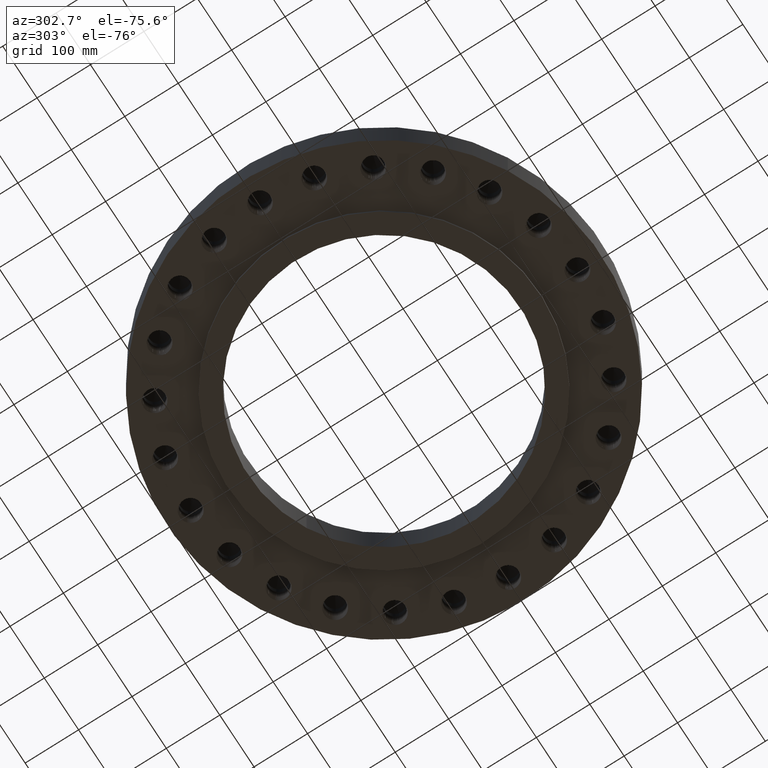
[diagram: clean part render]
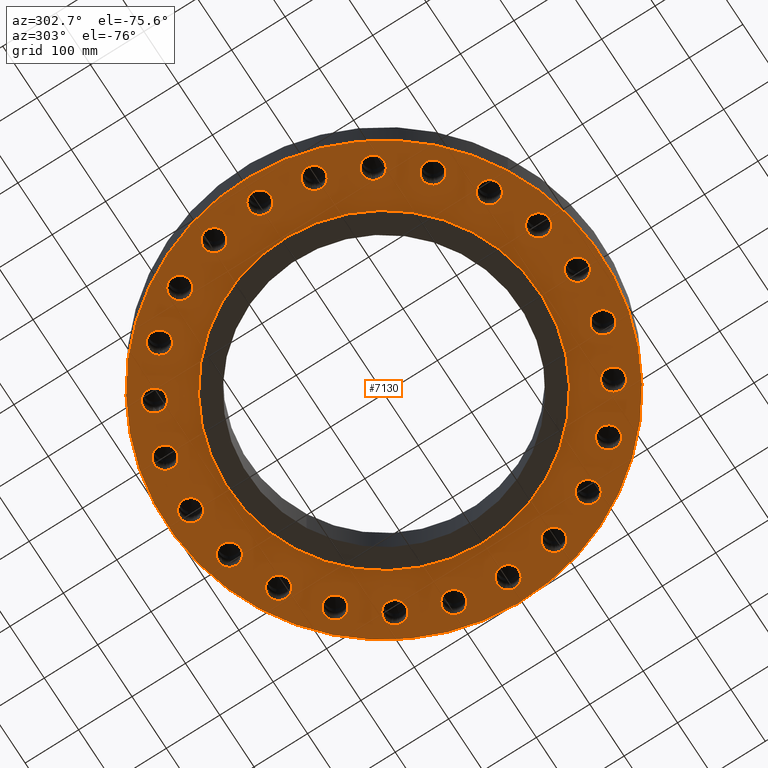
[diagram: same view with one face highlighted and labeled with its STEP entity id]
A machine part, auxiliary view. The second image highlights one B-rep face of the part: STEP entity #7130.
In plain terms, the highlighted planar face has unit normal (0, 0, -1).
Its self-contained STEP definition (entity closure, byte-faithful):
#5929=AXIS2_PLACEMENT_3D('Circle Axis2P3D',#5927,#5928,$) ;
#5949=AXIS2_PLACEMENT_3D('Circle Axis2P3D',#5947,#5948,$) ;
#5969=AXIS2_PLACEMENT_3D('Circle Axis2P3D',#5967,#5968,$) ;
#5981=AXIS2_PLACEMENT_3D('Plane Axis2P3D',#5978,#5979,#5980) ;
#5985=AXIS2_PLACEMENT_3D('Circle Axis2P3D',#5983,#5984,$) ;
#5994=AXIS2_PLACEMENT_3D('Circle Axis2P3D',#5992,#5993,$) ;
#6010=AXIS2_PLACEMENT_3D('Circle Axis2P3D',#6008,#6009,$) ;
#6019=AXIS2_PLACEMENT_3D('Circle Axis2P3D',#6017,#6018,$) ;
#6028=AXIS2_PLACEMENT_3D('Circle Axis2P3D',#6026,#6027,$) ;
#6037=AXIS2_PLACEMENT_3D('Circle Axis2P3D',#6035,#6036,$) ;
#6044=AXIS2_PLACEMENT_3D('Circle Axis2P3D',#6042,#6043,$) ;
#6076=AXIS2_PLACEMENT_3D('Circle Axis2P3D',#6074,#6075,$) ;
#6085=AXIS2_PLACEMENT_3D('Circle Axis2P3D',#6083,#6084,$) ;
#6092=AXIS2_PLACEMENT_3D('Circle Axis2P3D',#6090,#6091,$) ;
#6124=AXIS2_PLACEMENT_3D('Circle Axis2P3D',#6122,#6123,$) ;
#6133=AXIS2_PLACEMENT_3D('Circle Axis2P3D',#6131,#6132,$) ;
#6140=AXIS2_PLACEMENT_3D('Circle Axis2P3D',#6138,#6139,$) ;
#6172=AXIS2_PLACEMENT_3D('Circle Axis2P3D',#6170,#6171,$) ;
#6181=AXIS2_PLACEMENT_3D('Circle Axis2P3D',#6179,#6180,$) ;
#6188=AXIS2_PLACEMENT_3D('Circle Axis2P3D',#6186,#6187,$) ;
#6220=AXIS2_PLACEMENT_3D('Circle Axis2P3D',#6218,#6219,$) ;
#6229=AXIS2_PLACEMENT_3D('Circle Axis2P3D',#6227,#6228,$) ;
#6236=AXIS2_PLACEMENT_3D('Circle Axis2P3D',#6234,#6235,$) ;
#6268=AXIS2_PLACEMENT_3D('Circle Axis2P3D',#6266,#6267,$) ;
#6277=AXIS2_PLACEMENT_3D('Circle Axis2P3D',#6275,#6276,$) ;
#6284=AXIS2_PLACEMENT_3D('Circle Axis2P3D',#6282,#6283,$) ;
#6316=AXIS2_PLACEMENT_3D('Circle Axis2P3D',#6314,#6315,$) ;
#6325=AXIS2_PLACEMENT_3D('Circle Axis2P3D',#6323,#6324,$) ;
#6332=AXIS2_PLACEMENT_3D('Circle Axis2P3D',#6330,#6331,$) ;
#6364=AXIS2_PLACEMENT_3D('Circle Axis2P3D',#6362,#6363,$) ;
#6373=AXIS2_PLACEMENT_3D('Circle Axis2P3D',#6371,#6372,$) ;
#6380=AXIS2_PLACEMENT_3D('Circle Axis2P3D',#6378,#6379,$) ;
#6412=AXIS2_PLACEMENT_3D('Circle Axis2P3D',#6410,#6411,$) ;
#6421=AXIS2_PLACEMENT_3D('Circle Axis2P3D',#6419,#6420,$) ;
#6428=AXIS2_PLACEMENT_3D('Circle Axis2P3D',#6426,#6427,$) ;
#6460=AXIS2_PLACEMENT_3D('Circle Axis2P3D',#6458,#6459,$) ;
#6469=AXIS2_PLACEMENT_3D('Circle Axis2P3D',#6467,#6468,$) ;
#6476=AXIS2_PLACEMENT_3D('Circle Axis2P3D',#6474,#6475,$) ;
#6508=AXIS2_PLACEMENT_3D('Circle Axis2P3D',#6506,#6507,$) ;
#6517=AXIS2_PLACEMENT_3D('Circle Axis2P3D',#6515,#6516,$) ;
#6524=AXIS2_PLACEMENT_3D('Circle Axis2P3D',#6522,#6523,$) ;
#6556=AXIS2_PLACEMENT_3D('Circle Axis2P3D',#6554,#6555,$) ;
#6565=AXIS2_PLACEMENT_3D('Circle Axis2P3D',#6563,#6564,$) ;
#6572=AXIS2_PLACEMENT_3D('Circle Axis2P3D',#6570,#6571,$) ;
#6604=AXIS2_PLACEMENT_3D('Circle Axis2P3D',#6602,#6603,$) ;
#6613=AXIS2_PLACEMENT_3D('Circle Axis2P3D',#6611,#6612,$) ;
#6620=AXIS2_PLACEMENT_3D('Circle Axis2P3D',#6618,#6619,$) ;
#6652=AXIS2_PLACEMENT_3D('Circle Axis2P3D',#6650,#6651,$) ;
#6661=AXIS2_PLACEMENT_3D('Circle Axis2P3D',#6659,#6660,$) ;
#6668=AXIS2_PLACEMENT_3D('Circle Axis2P3D',#6666,#6667,$) ;
#6700=AXIS2_PLACEMENT_3D('Circle Axis2P3D',#6698,#6699,$) ;
#6709=AXIS2_PLACEMENT_3D('Circle Axis2P3D',#6707,#6708,$) ;
#6716=AXIS2_PLACEMENT_3D('Circle Axis2P3D',#6714,#6715,$) ;
#6748=AXIS2_PLACEMENT_3D('Circle Axis2P3D',#6746,#6747,$) ;
#6757=AXIS2_PLACEMENT_3D('Circle Axis2P3D',#6755,#6756,$) ;
#6764=AXIS2_PLACEMENT_3D('Circle Axis2P3D',#6762,#6763,$) ;
#6796=AXIS2_PLACEMENT_3D('Circle Axis2P3D',#6794,#6795,$) ;
#6805=AXIS2_PLACEMENT_3D('Circle Axis2P3D',#6803,#6804,$) ;
#6812=AXIS2_PLACEMENT_3D('Circle Axis2P3D',#6810,#6811,$) ;
#6844=AXIS2_PLACEMENT_3D('Circle Axis2P3D',#6842,#6843,$) ;
#6853=AXIS2_PLACEMENT_3D('Circle Axis2P3D',#6851,#6852,$) ;
#6860=AXIS2_PLACEMENT_3D('Circle Axis2P3D',#6858,#6859,$) ;
#6892=AXIS2_PLACEMENT_3D('Circle Axis2P3D',#6890,#6891,$) ;
#6901=AXIS2_PLACEMENT_3D('Circle Axis2P3D',#6899,#6900,$) ;
#6908=AXIS2_PLACEMENT_3D('Circle Axis2P3D',#6906,#6907,$) ;
#6940=AXIS2_PLACEMENT_3D('Circle Axis2P3D',#6938,#6939,$) ;
#6949=AXIS2_PLACEMENT_3D('Circle Axis2P3D',#6947,#6948,$) ;
#6956=AXIS2_PLACEMENT_3D('Circle Axis2P3D',#6954,#6955,$) ;
#6988=AXIS2_PLACEMENT_3D('Circle Axis2P3D',#6986,#6987,$) ;
#6997=AXIS2_PLACEMENT_3D('Circle Axis2P3D',#6995,#6996,$) ;
#7004=AXIS2_PLACEMENT_3D('Circle Axis2P3D',#7002,#7003,$) ;
#7036=AXIS2_PLACEMENT_3D('Circle Axis2P3D',#7034,#7035,$) ;
#7045=AXIS2_PLACEMENT_3D('Circle Axis2P3D',#7043,#7044,$) ;
#7052=AXIS2_PLACEMENT_3D('Circle Axis2P3D',#7050,#7051,$) ;
#7084=AXIS2_PLACEMENT_3D('Circle Axis2P3D',#7082,#7083,$) ;
#7093=AXIS2_PLACEMENT_3D('Circle Axis2P3D',#7091,#7092,$) ;
#7100=AXIS2_PLACEMENT_3D('Circle Axis2P3D',#7098,#7099,$) ;
#5661=CARTESIAN_POINT('Vertex',(10.0762716319,9.26377163195,-7.16203124803E-014)) ;
#5865=CARTESIAN_POINT('Vertex',(10.1761262382,9.27245009851,0.)) ;
#5869=CARTESIAN_POINT('Control Point',(10.0762716319,9.26377163195,-7.15787883908E-014)) ;
#5870=CARTESIAN_POINT('Control Point',(10.1097197344,9.26460480928,-7.15794326208E-014)) ;
#5871=CARTESIAN_POINT('Control Point',(10.1430911446,9.26750668275,-3.74363736865E-012)) ;
#5872=CARTESIAN_POINT('Control Point',(10.1761261876,9.27244996004,3.09940175012E-013)) ;
#5902=CARTESIAN_POINT('Control Point',(10.0762716319,9.26377163195,-1.31128703696E-017)) ;
#5903=CARTESIAN_POINT('Control Point',(10.0428430986,9.26460432191,-1.35957601763E-017)) ;
#5904=CARTESIAN_POINT('Control Point',(10.0094909183,9.26750334328,-1.95999572798E-011)) ;
#5905=CARTESIAN_POINT('Control Point',(9.97647076667,9.27244329817,-5.05633002659E-011)) ;
#5906=CARTESIAN_POINT('Vertex',(9.97647076306,9.27244342482,0.)) ;
#5927=CARTESIAN_POINT('Axis2P3D Location',(10.0762716319,10.0762716319,0.)) ;
#5931=CARTESIAN_POINT('Vertex',(9.36542975681,9.68793694568,-4.10869938247E-016)) ;
#5947=CARTESIAN_POINT('Axis2P3D Location',(10.0762716319,10.0762716319,0.)) ;
#5951=CARTESIAN_POINT('Vertex',(10.7871135071,10.4646063182,-5.33256728363E-016)) ;
#5967=CARTESIAN_POINT('Axis2P3D Location',(10.0762716319,10.0762716319,0.)) ;
#5978=CARTESIAN_POINT('Axis2P3D Location',(0.,16.0000000001,0.)) ;
#5983=CARTESIAN_POINT('Axis2P3D Location',(0.,0.,0.)) ;
#5987=CARTESIAN_POINT('Vertex',(-7.6708086177,-14.0413209903,-4.9234457281E-014)) ;
#5989=CARTESIAN_POINT('Vertex',(7.6708086177,14.0413209903,-4.9234457281E-014)) ;
#5992=CARTESIAN_POINT('Axis2P3D Location',(0.,0.,0.)) ;
#6008=CARTESIAN_POINT('Axis2P3D Location',(0.,0.,0.)) ;
#6012=CARTESIAN_POINT('Vertex',(5.51339369397,10.0921994618,-3.49676543189E-014)) ;
#6014=CARTESIAN_POINT('Vertex',(-5.51339369397,-10.0921994618,-3.49676543189E-014)) ;
#6017=CARTESIAN_POINT('Axis2P3D Location',(0.,0.,0.)) ;
#6026=CARTESIAN_POINT('Axis2P3D Location',(12.340862004,7.12500000003,0.)) ;
#6030=CARTESIAN_POINT('Vertex',(13.1279909423,7.3161230874,0.)) ;
#6032=CARTESIAN_POINT('Vertex',(12.2292698253,6.32272374732,0.)) ;
#6035=CARTESIAN_POINT('Axis2P3D Location',(12.340862004,7.12500000003,0.)) ;
#6039=CARTESIAN_POINT('Vertex',(11.5537330657,6.93387691266,8.74191357973E-018)) ;
#6042=CARTESIAN_POINT('Axis2P3D Location',(12.340862004,7.12500000003,0.)) ;
#6046=CARTESIAN_POINT('Vertex',(12.0364157183,6.37439194044,0.)) ;
#6050=CARTESIAN_POINT('Control Point',(12.1305715298,6.34018526617,0.)) ;
#6051=CARTESIAN_POINT('Control Point',(12.1113271492,6.34585902086,0.)) ;
#6052=CARTESIAN_POINT('Control Point',(12.092265049,6.3521248764,0.)) ;
#6053=CARTESIAN_POINT('Control Point',(12.0734098305,6.35897529624,0.)) ;
#6054=CARTESIAN_POINT('Control Point',(12.0547855846,6.36640117193,0.)) ;
#6055=CARTESIAN_POINT('Control Point',(12.0364157183,6.37439194044,0.)) ;
#6056=CARTESIAN_POINT('Vertex',(12.1305715298,6.34018526617,-7.16203124803E-014)) ;
#6060=CARTESIAN_POINT('Control Point',(12.1305715298,6.34018526617,0.)) ;
#6061=CARTESIAN_POINT('Control Point',(12.1500859467,6.33547393511,0.)) ;
#6062=CARTESIAN_POINT('Control Point',(12.1697387178,6.33136722572,0.)) ;
#6063=CARTESIAN_POINT('Control Point',(12.1895041847,6.32787083999,0.)) ;
#6064=CARTESIAN_POINT('Control Point',(12.2093565066,6.32498885878,0.)) ;
#6065=CARTESIAN_POINT('Control Point',(12.2292698253,6.32272374732,0.)) ;
#6074=CARTESIAN_POINT('Axis2P3D Location',(13.7644430247,3.68817139273,0.)) ;
#6078=CARTESIAN_POINT('Vertex',(14.5742174897,3.66905815864,0.)) ;
#6080=CARTESIAN_POINT('Vertex',(13.4490088837,2.94211422153,0.)) ;
#6083=CARTESIAN_POINT('Axis2P3D Location',(13.7644430247,3.68817139273,0.)) ;
#6087=CARTESIAN_POINT('Vertex',(12.9546685596,3.70728462681,8.74191357973E-018)) ;
#6090=CARTESIAN_POINT('Axis2P3D Location',(13.7644430247,3.68817139273,0.)) ;
#6094=CARTESIAN_POINT('Vertex',(13.2760988333,3.04193617951,0.)) ;
#6098=CARTESIAN_POINT('Control Point',(13.3581930247,2.98452575215,0.)) ;
#6099=CARTESIAN_POINT('Control Point',(13.3410728562,2.99498699055,0.)) ;
#6100=CARTESIAN_POINT('Control Point',(13.324282004,3.00597297683,0.)) ;
#6101=CARTESIAN_POINT('Control Point',(13.3078422806,3.01747006392,0.)) ;
#6102=CARTESIAN_POINT('Control Point',(13.2917745986,3.02946321857,0.)) ;
#6103=CARTESIAN_POINT('Control Point',(13.2760988333,3.04193617951,0.)) ;
#6104=CARTESIAN_POINT('Vertex',(13.3581930247,2.98452575215,-7.16203124803E-014)) ;
#6108=CARTESIAN_POINT('Control Point',(13.3581930247,2.98452575215,0.)) ;
#6109=CARTESIAN_POINT('Control Point',(13.3758231217,2.97492425305,0.)) ;
#6110=CARTESIAN_POINT('Control Point',(13.3937433463,2.96587096495,0.)) ;
#6111=CARTESIAN_POINT('Control Point',(13.41193039,2.9573780364,0.)) ;
#6112=CARTESIAN_POINT('Control Point',(13.4303603488,2.94945609734,0.)) ;
#6113=CARTESIAN_POINT('Control Point',(13.4490088837,2.94211422153,0.)) ;
#6122=CARTESIAN_POINT('Axis2P3D Location',(14.2500000001,4.47585975282E-015,0.)) ;
#6126=CARTESIAN_POINT('Vertex',(15.0272352003,-0.228047020226,0.)) ;
#6128=CARTESIAN_POINT('Vertex',(13.7522202121,-0.638995526363,0.)) ;
#6131=CARTESIAN_POINT('Axis2P3D Location',(14.2500000001,4.47585975282E-015,0.)) ;
#6135=CARTESIAN_POINT('Vertex',(13.4727647998,0.228047020227,0.)) ;
#6138=CARTESIAN_POINT('Axis2P3D Location',(14.2500000001,4.47585975282E-015,0.)) ;
#6142=CARTESIAN_POINT('Vertex',(13.6110377527,-0.497822505016,0.)) ;
#6146=CARTESIAN_POINT('Control Point',(13.6754757403,-0.574524259716,0.)) ;
#6147=CARTESIAN_POINT('Control Point',(13.6616464952,-0.559988453716,0.)) ;
#6148=CARTESIAN_POINT('Control Point',(13.6482711599,-0.545031013506,0.)) ;
#6149=CARTESIAN_POINT('Control Point',(13.6353672716,-0.529670766648,0.)) ;
#6150=CARTESIAN_POINT('Control Point',(13.6229511394,-0.513927646706,0.)) ;
#6151=CARTESIAN_POINT('Control Point',(13.6110377527,-0.497822505016,0.)) ;
#6152=CARTESIAN_POINT('Vertex',(13.6754757403,-0.574524259716,-7.16203124803E-014)) ;
#6156=CARTESIAN_POINT('Control Point',(13.6754757403,-0.574524259716,0.)) ;
#6157=CARTESIAN_POINT('Control Point',(13.6900200556,-0.588361600552,0.)) ;
#6158=CARTESIAN_POINT('Control Point',(13.7049864999,-0.601744500749,0.)) ;
#6159=CARTESIAN_POINT('Control Point',(13.7203557035,-0.614655193068,0.)) ;
#6160=CARTESIAN_POINT('Control Point',(13.7361073279,-0.627077222918,0.)) ;
#6161=CARTESIAN_POINT('Control Point',(13.7522202121,-0.638995526363,0.)) ;
#6170=CARTESIAN_POINT('Axis2P3D Location',(13.7644430247,-3.68817139273,0.)) ;
#6174=CARTESIAN_POINT('Vertex',(14.4561716657,-4.10961117153,0.)) ;
#6176=CARTESIAN_POINT('Vertex',(13.1182404598,-4.17655878516,0.)) ;
#6179=CARTESIAN_POINT('Axis2P3D Location',(13.7644430247,-3.68817139273,0.)) ;
#6183=CARTESIAN_POINT('Vertex',(13.0727143836,-3.26673161392,-7.43062654277E-016)) ;
#6186=CARTESIAN_POINT('Axis2P3D Location',(13.7644430247,-3.68817139273,0.)) ;
#6190=CARTESIAN_POINT('Vertex',(13.0184069426,-4.00365540854,0.)) ;
#6194=CARTESIAN_POINT('Control Point',(13.0607973841,-4.09442139273,0.)) ;
#6195=CARTESIAN_POINT('Control Point',(13.0512015025,-4.07680161029,0.)) ;
#6196=CARTESIAN_POINT('Control Point',(13.0421531911,-4.05889204099,0.)) ;
#6197=CARTESIAN_POINT('Control Point',(13.0336645165,-4.04071540981,0.)) ;
#6198=CARTESIAN_POINT('Control Point',(13.025746073,-4.02229519218,0.)) ;
#6199=CARTESIAN_POINT('Control Point',(13.0184069426,-4.00365540854,0.)) ;
#6200=CARTESIAN_POINT('Vertex',(13.0607973841,-4.09442139273,-7.16203124803E-014)) ;
#6204=CARTESIAN_POINT('Control Point',(13.0607973841,-4.09442139273,0.)) ;
#6205=CARTESIAN_POINT('Control Point',(13.0712647465,-4.1115515834,0.)) ;
#6206=CARTESIAN_POINT('Control Point',(13.0822574721,-4.12835207317,0.)) ;
#6207=CARTESIAN_POINT('Control Point',(13.0937614498,-4.14480068691,0.)) ;
#6208=CARTESIAN_POINT('Control Point',(13.1057612927,-4.16087626676,0.)) ;
#6209=CARTESIAN_POINT('Control Point',(13.1182404598,-4.17655878516,0.)) ;
#6218=CARTESIAN_POINT('Axis2P3D Location',(12.340862004,-7.12500000003,0.)) ;
#6222=CARTESIAN_POINT('Vertex',(12.899943922,-7.71111211295,0.)) ;
#6224=CARTESIAN_POINT('Vertex',(11.5902742989,-7.42949646481,0.)) ;
#6227=CARTESIAN_POINT('Axis2P3D Location',(12.340862004,-7.12500000003,0.)) ;
#6231=CARTESIAN_POINT('Vertex',(11.7817800859,-6.53888788711,0.)) ;
#6234=CARTESIAN_POINT('Axis2P3D Location',(12.340862004,-7.12500000003,0.)) ;
#6238=CARTESIAN_POINT('Vertex',(11.5385932132,-7.23664581229,0.)) ;
#6242=CARTESIAN_POINT('Control Point',(11.5560472701,-7.33529047418,0.)) ;
#6243=CARTESIAN_POINT('Control Point',(11.5513386955,-7.31578747435,0.)) ;
#6244=CARTESIAN_POINT('Control Point',(11.5472340355,-7.2961462835,0.)) ;
#6245=CARTESIAN_POINT('Control Point',(11.5437390638,-7.27639197537,0.)) ;
#6246=CARTESIAN_POINT('Control Point',(11.5408579379,-7.25654996744,0.)) ;
#6247=CARTESIAN_POINT('Control Point',(11.5385932132,-7.23664581229,0.)) ;
#6248=CARTESIAN_POINT('Vertex',(11.5560472701,-7.33529047418,-7.16203124803E-014)) ;
#6252=CARTESIAN_POINT('Control Point',(11.5560472701,-7.33529047418,0.)) ;
#6253=CARTESIAN_POINT('Control Point',(11.5617243462,-7.35454612049,0.)) ;
#6254=CARTESIAN_POINT('Control Point',(11.5679942171,-7.3736192742,0.)) ;
#6255=CARTESIAN_POINT('Control Point',(11.5748489917,-7.39248486353,0.)) ;
#6256=CARTESIAN_POINT('Control Point',(11.5822792836,-7.41111846916,0.)) ;
#6257=CARTESIAN_POINT('Control Point',(11.5902742989,-7.42949646481,0.)) ;
#6266=CARTESIAN_POINT('Axis2P3D Location',(10.0762716319,-10.0762716319,0.)) ;
#6270=CARTESIAN_POINT('Vertex',(10.4646063182,-10.7871135071,0.)) ;
#6272=CARTESIAN_POINT('Vertex',(9.27245009851,-10.1761262382,0.)) ;
#6275=CARTESIAN_POINT('Axis2P3D Location',(10.0762716319,-10.0762716319,0.)) ;
#6279=CARTESIAN_POINT('Vertex',(9.68793694568,-9.36542975681,8.74191357973E-018)) ;
#6282=CARTESIAN_POINT('Axis2P3D Location',(10.0762716319,-10.0762716319,0.)) ;
#6286=CARTESIAN_POINT('Vertex',(9.27244342482,-9.97647076307,0.)) ;
#6290=CARTESIAN_POINT('Control Point',(9.26377163195,-10.0762716319,0.)) ;
#6291=CARTESIAN_POINT('Control Point',(9.26427124593,-10.0562145119,0.)) ;
#6292=CARTESIAN_POINT('Control Point',(9.26538996303,-10.0361802142,0.)) ;
#6293=CARTESIAN_POINT('Control Point',(9.26712687083,-10.0161944526,0.)) ;
#6294=CARTESIAN_POINT('Control Point',(9.26947940639,-9.99628285444,0.)) ;
#6295=CARTESIAN_POINT('Control Point',(9.27244342482,-9.97647076307,0.)) ;
#6296=CARTESIAN_POINT('Vertex',(9.26377163195,-10.0762716319,-7.16203124803E-014)) ;
#6300=CARTESIAN_POINT('Control Point',(9.26377163195,-10.0762716319,0.)) ;
#6301=CARTESIAN_POINT('Control Point',(9.26427153835,-10.0963404934,0.)) ;
#6302=CARTESIAN_POINT('Control Point',(9.26539127314,-10.1163865072,0.)) ;
#6303=CARTESIAN_POINT('Control Point',(9.26712970313,-10.1363834133,0.)) ;
#6304=CARTESIAN_POINT('Control Point',(9.26948408203,-10.1563051953,0.)) ;
#6305=CARTESIAN_POINT('Control Point',(9.27245009851,-10.1761262382,0.)) ;
#6314=CARTESIAN_POINT('Axis2P3D Location',(7.12500000003,-12.340862004,0.)) ;
#6318=CARTESIAN_POINT('Vertex',(7.3161230874,-13.1279909423,0.)) ;
#6320=CARTESIAN_POINT('Vertex',(6.32272374732,-12.2292698253,0.)) ;
#6323=CARTESIAN_POINT('Axis2P3D Location',(7.12500000003,-12.340862004,0.)) ;
#6327=CARTESIAN_POINT('Vertex',(6.93387691266,-11.5537330657,8.74191357973E-018)) ;
#6330=CARTESIAN_POINT('Axis2P3D Location',(7.12500000003,-12.340862004,0.)) ;
#6334=CARTESIAN_POINT('Vertex',(6.37439194044,-12.0364157183,0.)) ;
#6338=CARTESIAN_POINT('Control Point',(6.34018526617,-12.1305715298,0.)) ;
#6339=CARTESIAN_POINT('Control Point',(6.34585902086,-12.1113271492,0.)) ;
#6340=CARTESIAN_POINT('Control Point',(6.3521248764,-12.092265049,0.)) ;
#6341=CARTESIAN_POINT('Control Point',(6.35897529624,-12.0734098305,0.)) ;
#6342=CARTESIAN_POINT('Control Point',(6.36640117192,-12.0547855846,0.)) ;
#6343=CARTESIAN_POINT('Control Point',(6.37439194044,-12.0364157183,0.)) ;
#6344=CARTESIAN_POINT('Vertex',(6.34018526617,-12.1305715298,-7.16203124803E-014)) ;
#6348=CARTESIAN_POINT('Control Point',(6.34018526617,-12.1305715298,0.)) ;
#6349=CARTESIAN_POINT('Control Point',(6.33547393511,-12.1500859467,0.)) ;
#6350=CARTESIAN_POINT('Control Point',(6.33136722573,-12.1697387178,0.)) ;
#6351=CARTESIAN_POINT('Control Point',(6.32787083999,-12.1895041847,0.)) ;
#6352=CARTESIAN_POINT('Control Point',(6.32498885878,-12.2093565065,0.)) ;
#6353=CARTESIAN_POINT('Control Point',(6.32272374732,-12.2292698253,0.)) ;
#6362=CARTESIAN_POINT('Axis2P3D Location',(3.68817139273,-13.7644430247,0.)) ;
#6366=CARTESIAN_POINT('Vertex',(3.66905815864,-14.5742174897,0.)) ;
#6368=CARTESIAN_POINT('Vertex',(2.94211422154,-13.4490088836,0.)) ;
#6371=CARTESIAN_POINT('Axis2P3D Location',(3.68817139273,-13.7644430247,0.)) ;
#6375=CARTESIAN_POINT('Vertex',(3.70728462681,-12.9546685596,8.74191357973E-018)) ;
#6378=CARTESIAN_POINT('Axis2P3D Location',(3.68817139273,-13.7644430247,0.)) ;
#6382=CARTESIAN_POINT('Vertex',(3.04193617953,-13.2760988333,0.)) ;
#6386=CARTESIAN_POINT('Control Point',(2.98452575215,-13.3581930247,0.)) ;
#6387=CARTESIAN_POINT('Control Point',(2.99498699055,-13.3410728562,0.)) ;
#6388=CARTESIAN_POINT('Control Point',(3.00597297684,-13.324282004,0.)) ;
#6389=CARTESIAN_POINT('Control Point',(3.01747006393,-13.3078422806,0.)) ;
#6390=CARTESIAN_POINT('Control Point',(3.02946321858,-13.2917745985,0.)) ;
#6391=CARTESIAN_POINT('Control Point',(3.04193617953,-13.2760988333,0.)) ;
#6392=CARTESIAN_POINT('Vertex',(2.98452575215,-13.3581930247,-7.16203124803E-014)) ;
#6396=CARTESIAN_POINT('Control Point',(2.98452575215,-13.3581930247,0.)) ;
#6397=CARTESIAN_POINT('Control Point',(2.97492425305,-13.3758231217,0.)) ;
#6398=CARTESIAN_POINT('Control Point',(2.96587096495,-13.3937433463,0.)) ;
#6399=CARTESIAN_POINT('Control Point',(2.9573780364,-13.41193039,0.)) ;
#6400=CARTESIAN_POINT('Control Point',(2.94945609735,-13.4303603488,0.)) ;
#6401=CARTESIAN_POINT('Control Point',(2.94211422154,-13.4490088836,0.)) ;
#6410=CARTESIAN_POINT('Axis2P3D Location',(3.35689481461E-015,-14.2500000001,0.)) ;
#6414=CARTESIAN_POINT('Vertex',(-0.228047020226,-15.0272352003,0.)) ;
#6416=CARTESIAN_POINT('Vertex',(-0.638995526365,-13.7522202121,0.)) ;
#6419=CARTESIAN_POINT('Axis2P3D Location',(3.56670074053E-015,-14.2500000001,0.)) ;
#6423=CARTESIAN_POINT('Vertex',(0.228047020227,-13.4727647998,0.)) ;
#6426=CARTESIAN_POINT('Axis2P3D Location',(3.35689481461E-015,-14.2500000001,0.)) ;
#6430=CARTESIAN_POINT('Vertex',(-0.497822505026,-13.6110377527,0.)) ;
#6434=CARTESIAN_POINT('Control Point',(-0.574524259716,-13.6754757403,0.)) ;
#6435=CARTESIAN_POINT('Control Point',(-0.559988453718,-13.6616464952,0.)) ;
#6436=CARTESIAN_POINT('Control Point',(-0.545031013511,-13.6482711599,0.)) ;
#6437=CARTESIAN_POINT('Control Point',(-0.529670766654,-13.6353672716,0.)) ;
#6438=CARTESIAN_POINT('Control Point',(-0.513927646714,-13.6229511394,0.)) ;
#6439=CARTESIAN_POINT('Control Point',(-0.497822505026,-13.6110377527,0.)) ;
#6440=CARTESIAN_POINT('Vertex',(-0.574524259716,-13.6754757403,-7.16203124803E-014)) ;
#6444=CARTESIAN_POINT('Control Point',(-0.574524259716,-13.6754757403,0.)) ;
#6445=CARTESIAN_POINT('Control Point',(-0.588361600553,-13.6900200556,0.)) ;
#6446=CARTESIAN_POINT('Control Point',(-0.60174450075,-13.7049864999,0.)) ;
#6447=CARTESIAN_POINT('Control Point',(-0.614655193069,-13.7203557035,0.)) ;
#6448=CARTESIAN_POINT('Control Point',(-0.627077222921,-13.7361073279,0.)) ;
#6449=CARTESIAN_POINT('Control Point',(-0.638995526365,-13.7522202121,0.)) ;
#6458=CARTESIAN_POINT('Axis2P3D Location',(-3.68817139273,-13.7644430247,0.)) ;
#6462=CARTESIAN_POINT('Vertex',(-4.10961117153,-14.4561716657,0.)) ;
#6464=CARTESIAN_POINT('Vertex',(-4.17655878514,-13.1182404597,0.)) ;
#6467=CARTESIAN_POINT('Axis2P3D Location',(-3.68817139273,-13.7644430247,0.)) ;
#6471=CARTESIAN_POINT('Vertex',(-3.26673161392,-13.0727143836,0.)) ;
#6474=CARTESIAN_POINT('Axis2P3D Location',(-3.68817139273,-13.7644430247,0.)) ;
#6478=CARTESIAN_POINT('Vertex',(-4.00365540846,-13.0184069426,0.)) ;
#6482=CARTESIAN_POINT('Control Point',(-4.09442139273,-13.0607973841,0.)) ;
#6483=CARTESIAN_POINT('Control Point',(-4.07680161027,-13.0512015025,0.)) ;
#6484=CARTESIAN_POINT('Control Point',(-4.05889204095,-13.0421531911,0.)) ;
#6485=CARTESIAN_POINT('Control Point',(-4.04071540976,-13.0336645165,0.)) ;
#6486=CARTESIAN_POINT('Control Point',(-4.02229519212,-13.025746073,0.)) ;
#6487=CARTESIAN_POINT('Control Point',(-4.00365540846,-13.0184069426,0.)) ;
#6488=CARTESIAN_POINT('Vertex',(-4.09442139273,-13.0607973841,-7.16203124803E-014)) ;
#6492=CARTESIAN_POINT('Control Point',(-4.09442139273,-13.0607973841,0.)) ;
#6493=CARTESIAN_POINT('Control Point',(-4.11155158339,-13.0712647465,0.)) ;
#6494=CARTESIAN_POINT('Control Point',(-4.12835207316,-13.0822574721,0.)) ;
#6495=CARTESIAN_POINT('Control Point',(-4.1448006869,-13.0937614498,0.)) ;
#6496=CARTESIAN_POINT('Control Point',(-4.16087626674,-13.1057612927,0.)) ;
#6497=CARTESIAN_POINT('Control Point',(-4.17655878514,-13.1182404597,0.)) ;
#6506=CARTESIAN_POINT('Axis2P3D Location',(-7.12500000003,-12.340862004,0.)) ;
#6510=CARTESIAN_POINT('Vertex',(-7.71111211295,-12.899943922,0.)) ;
#6512=CARTESIAN_POINT('Vertex',(-7.42949646478,-11.5902742989,0.)) ;
#6515=CARTESIAN_POINT('Axis2P3D Location',(-7.12500000003,-12.340862004,0.)) ;
#6519=CARTESIAN_POINT('Vertex',(-6.53888788711,-11.7817800859,4.10869938247E-016)) ;
#6522=CARTESIAN_POINT('Axis2P3D Location',(-7.12500000003,-12.340862004,0.)) ;
#6526=CARTESIAN_POINT('Vertex',(-7.23664581235,-11.5385932132,0.)) ;
#6530=CARTESIAN_POINT('Control Point',(-7.33529047418,-11.5560472701,0.)) ;
#6531=CARTESIAN_POINT('Control Point',(-7.31578747436,-11.5513386955,0.)) ;
#6532=CARTESIAN_POINT('Control Point',(-7.29614628352,-11.5472340355,0.)) ;
#6533=CARTESIAN_POINT('Control Point',(-7.2763919754,-11.5437390638,0.)) ;
#6534=CARTESIAN_POINT('Control Point',(-7.25654996749,-11.5408579379,0.)) ;
#6535=CARTESIAN_POINT('Control Point',(-7.23664581235,-11.5385932132,0.)) ;
#6536=CARTESIAN_POINT('Vertex',(-7.33529047418,-11.5560472701,-7.16203124803E-014)) ;
#6540=CARTESIAN_POINT('Control Point',(-7.33529047418,-11.5560472701,0.)) ;
#6541=CARTESIAN_POINT('Control Point',(-7.35454612048,-11.5617243462,0.)) ;
#6542=CARTESIAN_POINT('Control Point',(-7.37361927419,-11.5679942171,0.)) ;
#6543=CARTESIAN_POINT('Control Point',(-7.39248486351,-11.5748489917,0.)) ;
#6544=CARTESIAN_POINT('Control Point',(-7.41111846914,-11.5822792836,0.)) ;
#6545=CARTESIAN_POINT('Control Point',(-7.42949646478,-11.5902742989,0.)) ;
#6554=CARTESIAN_POINT('Axis2P3D Location',(-10.0762716319,-10.0762716319,0.)) ;
#6558=CARTESIAN_POINT('Vertex',(-10.7871135071,-10.4646063182,0.)) ;
#6560=CARTESIAN_POINT('Vertex',(-10.1761262382,-9.27245009851,0.)) ;
#6563=CARTESIAN_POINT('Axis2P3D Location',(-10.0762716319,-10.0762716319,0.)) ;
#6567=CARTESIAN_POINT('Vertex',(-9.36542975681,-9.68793694568,8.74191357973E-018)) ;
#6570=CARTESIAN_POINT('Axis2P3D Location',(-10.0762716319,-10.0762716319,0.)) ;
#6574=CARTESIAN_POINT('Vertex',(-9.97647076305,-9.27244342482,0.)) ;
#6578=CARTESIAN_POINT('Control Point',(-10.0762716319,-9.26377163195,0.)) ;
#6579=CARTESIAN_POINT('Control Point',(-10.0562145119,-9.26427124593,0.)) ;
#6580=CARTESIAN_POINT('Control Point',(-10.0361802142,-9.26538996303,0.)) ;
#6581=CARTESIAN_POINT('Control Point',(-10.0161944526,-9.26712687083,0.)) ;
#6582=CARTESIAN_POINT('Control Point',(-9.99628285442,-9.26947940639,0.)) ;
#6583=CARTESIAN_POINT('Control Point',(-9.97647076305,-9.27244342482,0.)) ;
#6584=CARTESIAN_POINT('Vertex',(-10.0762716319,-9.26377163195,-7.16203124803E-014)) ;
#6588=CARTESIAN_POINT('Control Point',(-10.0762716319,-9.26377163195,0.)) ;
#6589=CARTESIAN_POINT('Control Point',(-10.0963404934,-9.26427153835,0.)) ;
#6590=CARTESIAN_POINT('Control Point',(-10.1163865072,-9.26539127314,0.)) ;
#6591=CARTESIAN_POINT('Control Point',(-10.1363834134,-9.26712970313,0.)) ;
#6592=CARTESIAN_POINT('Control Point',(-10.1563051954,-9.26948408203,0.)) ;
#6593=CARTESIAN_POINT('Control Point',(-10.1761262382,-9.27245009851,0.)) ;
#6602=CARTESIAN_POINT('Axis2P3D Location',(-12.340862004,-7.12500000003,0.)) ;
#6606=CARTESIAN_POINT('Vertex',(-13.1279909423,-7.3161230874,0.)) ;
#6608=CARTESIAN_POINT('Vertex',(-12.2292698253,-6.32272374732,0.)) ;
#6611=CARTESIAN_POINT('Axis2P3D Location',(-12.340862004,-7.12500000003,0.)) ;
#6615=CARTESIAN_POINT('Vertex',(-11.5537330657,-6.93387691266,8.74191357973E-018)) ;
#6618=CARTESIAN_POINT('Axis2P3D Location',(-12.340862004,-7.12500000003,0.)) ;
#6622=CARTESIAN_POINT('Vertex',(-12.0364157183,-6.37439194044,0.)) ;
#6626=CARTESIAN_POINT('Control Point',(-12.1305715298,-6.34018526617,0.)) ;
#6627=CARTESIAN_POINT('Control Point',(-12.1113271492,-6.34585902086,0.)) ;
#6628=CARTESIAN_POINT('Control Point',(-12.092265049,-6.3521248764,0.)) ;
#6629=CARTESIAN_POINT('Control Point',(-12.0734098305,-6.35897529624,0.)) ;
#6630=CARTESIAN_POINT('Control Point',(-12.0547855846,-6.36640117193,0.)) ;
#6631=CARTESIAN_POINT('Control Point',(-12.0364157183,-6.37439194044,0.)) ;
#6632=CARTESIAN_POINT('Vertex',(-12.1305715298,-6.34018526617,-7.16203124803E-014)) ;
#6636=CARTESIAN_POINT('Control Point',(-12.1305715298,-6.34018526617,0.)) ;
#6637=CARTESIAN_POINT('Control Point',(-12.1500859467,-6.33547393511,0.)) ;
#6638=CARTESIAN_POINT('Control Point',(-12.1697387178,-6.33136722572,0.)) ;
#6639=CARTESIAN_POINT('Control Point',(-12.1895041847,-6.32787083999,0.)) ;
#6640=CARTESIAN_POINT('Control Point',(-12.2093565066,-6.32498885878,0.)) ;
#6641=CARTESIAN_POINT('Control Point',(-12.2292698253,-6.32272374732,0.)) ;
#6650=CARTESIAN_POINT('Axis2P3D Location',(-13.7644430247,-3.68817139273,0.)) ;
#6654=CARTESIAN_POINT('Vertex',(-14.5742174897,-3.66905815864,0.)) ;
#6656=CARTESIAN_POINT('Vertex',(-13.4490088836,-2.94211422154,0.)) ;
#6659=CARTESIAN_POINT('Axis2P3D Location',(-13.7644430247,-3.68817139273,0.)) ;
#6663=CARTESIAN_POINT('Vertex',(-12.9546685596,-3.70728462681,1.12770685178E-015)) ;
#6666=CARTESIAN_POINT('Axis2P3D Location',(-13.7644430247,-3.68817139273,0.)) ;
#6670=CARTESIAN_POINT('Vertex',(-13.2760988333,-3.04193617952,0.)) ;
#6674=CARTESIAN_POINT('Control Point',(-13.3581930247,-2.98452575215,0.)) ;
#6675=CARTESIAN_POINT('Control Point',(-13.3410728562,-2.99498699055,0.)) ;
#6676=CARTESIAN_POINT('Control Point',(-13.324282004,-3.00597297683,0.)) ;
#6677=CARTESIAN_POINT('Control Point',(-13.3078422806,-3.01747006393,0.)) ;
#6678=CARTESIAN_POINT('Control Point',(-13.2917745985,-3.02946321858,0.)) ;
#6679=CARTESIAN_POINT('Control Point',(-13.2760988333,-3.04193617952,0.)) ;
#6680=CARTESIAN_POINT('Vertex',(-13.3581930247,-2.98452575215,-7.16203124803E-014)) ;
#6684=CARTESIAN_POINT('Control Point',(-13.3581930247,-2.98452575215,0.)) ;
#6685=CARTESIAN_POINT('Control Point',(-13.3758231217,-2.97492425305,0.)) ;
#6686=CARTESIAN_POINT('Control Point',(-13.3937433463,-2.96587096495,0.)) ;
#6687=CARTESIAN_POINT('Control Point',(-13.41193039,-2.9573780364,0.)) ;
#6688=CARTESIAN_POINT('Control Point',(-13.4303603488,-2.94945609734,0.)) ;
#6689=CARTESIAN_POINT('Control Point',(-13.4490088836,-2.94211422154,0.)) ;
#6698=CARTESIAN_POINT('Axis2P3D Location',(-14.2500000001,-6.71378962923E-015,0.)) ;
#6702=CARTESIAN_POINT('Vertex',(-15.0272352003,0.228047020226,0.)) ;
#6704=CARTESIAN_POINT('Vertex',(-13.7522202121,0.638995526352,0.)) ;
#6707=CARTESIAN_POINT('Axis2P3D Location',(-14.2500000001,-6.71378962923E-015,0.)) ;
#6711=CARTESIAN_POINT('Vertex',(-13.4727647998,-0.228047020227,0.)) ;
#6714=CARTESIAN_POINT('Axis2P3D Location',(-14.2500000001,-6.71378962923E-015,0.)) ;
#6718=CARTESIAN_POINT('Vertex',(-13.6110377527,0.497822505028,0.)) ;
#6722=CARTESIAN_POINT('Control Point',(-13.6754757403,0.574524259716,0.)) ;
#6723=CARTESIAN_POINT('Control Point',(-13.6616464952,0.559988453718,0.)) ;
#6724=CARTESIAN_POINT('Control Point',(-13.6482711599,0.545031013512,0.)) ;
#6725=CARTESIAN_POINT('Control Point',(-13.6353672716,0.529670766655,0.)) ;
#6726=CARTESIAN_POINT('Control Point',(-13.6229511394,0.513927646716,0.)) ;
#6727=CARTESIAN_POINT('Control Point',(-13.6110377527,0.497822505028,0.)) ;
#6728=CARTESIAN_POINT('Vertex',(-13.6754757403,0.574524259716,-7.16203124803E-014)) ;
#6732=CARTESIAN_POINT('Control Point',(-13.6754757403,0.574524259716,0.)) ;
#6733=CARTESIAN_POINT('Control Point',(-13.6900200556,0.588361600549,0.)) ;
#6734=CARTESIAN_POINT('Control Point',(-13.7049864999,0.601744500744,0.)) ;
#6735=CARTESIAN_POINT('Control Point',(-13.7203557035,0.61465519306,0.)) ;
#6736=CARTESIAN_POINT('Control Point',(-13.7361073279,0.627077222909,0.)) ;
#6737=CARTESIAN_POINT('Control Point',(-13.7522202121,0.638995526352,0.)) ;
#6746=CARTESIAN_POINT('Axis2P3D Location',(-13.7644430247,3.68817139273,0.)) ;
#6750=CARTESIAN_POINT('Vertex',(-14.4561716657,4.10961117153,0.)) ;
#6752=CARTESIAN_POINT('Vertex',(-13.1182404597,4.17655878515,0.)) ;
#6755=CARTESIAN_POINT('Axis2P3D Location',(-13.7644430247,3.68817139273,0.)) ;
#6759=CARTESIAN_POINT('Vertex',(-13.0727143836,3.26673161392,0.)) ;
#6762=CARTESIAN_POINT('Axis2P3D Location',(-13.7644430247,3.68817139273,0.)) ;
#6766=CARTESIAN_POINT('Vertex',(-13.0184069426,4.00365540853,0.)) ;
#6770=CARTESIAN_POINT('Control Point',(-13.0607973841,4.09442139273,0.)) ;
#6771=CARTESIAN_POINT('Control Point',(-13.0512015025,4.07680161029,0.)) ;
#6772=CARTESIAN_POINT('Control Point',(-13.0421531911,4.05889204098,0.)) ;
#6773=CARTESIAN_POINT('Control Point',(-13.0336645165,4.0407154098,0.)) ;
#6774=CARTESIAN_POINT('Control Point',(-13.025746073,4.02229519217,0.)) ;
#6775=CARTESIAN_POINT('Control Point',(-13.0184069426,4.00365540853,0.)) ;
#6776=CARTESIAN_POINT('Vertex',(-13.0607973841,4.09442139273,-7.16203124803E-014)) ;
#6780=CARTESIAN_POINT('Control Point',(-13.0607973841,4.09442139273,0.)) ;
#6781=CARTESIAN_POINT('Control Point',(-13.0712647465,4.1115515834,0.)) ;
#6782=CARTESIAN_POINT('Control Point',(-13.0822574721,4.12835207316,0.)) ;
#6783=CARTESIAN_POINT('Control Point',(-13.0937614498,4.1448006869,0.)) ;
#6784=CARTESIAN_POINT('Control Point',(-13.1057612927,4.16087626674,0.)) ;
#6785=CARTESIAN_POINT('Control Point',(-13.1182404597,4.17655878515,0.)) ;
#6794=CARTESIAN_POINT('Axis2P3D Location',(-12.340862004,7.12500000003,0.)) ;
#6798=CARTESIAN_POINT('Vertex',(-12.899943922,7.71111211295,0.)) ;
#6800=CARTESIAN_POINT('Vertex',(-11.5902742989,7.42949646478,0.)) ;
#6803=CARTESIAN_POINT('Axis2P3D Location',(-12.340862004,7.12500000003,0.)) ;
#6807=CARTESIAN_POINT('Vertex',(-11.7817800859,6.53888788711,0.)) ;
#6810=CARTESIAN_POINT('Axis2P3D Location',(-12.340862004,7.12500000003,0.)) ;
#6814=CARTESIAN_POINT('Vertex',(-11.5385932132,7.23664581226,0.)) ;
#6818=CARTESIAN_POINT('Control Point',(-11.5560472701,7.33529047418,0.)) ;
#6819=CARTESIAN_POINT('Control Point',(-11.5513386955,7.31578747434,0.)) ;
#6820=CARTESIAN_POINT('Control Point',(-11.5472340354,7.29614628348,0.)) ;
#6821=CARTESIAN_POINT('Control Point',(-11.5437390638,7.27639197534,0.)) ;
#6822=CARTESIAN_POINT('Control Point',(-11.5408579378,7.25654996741,0.)) ;
#6823=CARTESIAN_POINT('Control Point',(-11.5385932132,7.23664581226,0.)) ;
#6824=CARTESIAN_POINT('Vertex',(-11.5560472701,7.33529047418,-7.16203124803E-014)) ;
#6828=CARTESIAN_POINT('Control Point',(-11.5560472701,7.33529047418,0.)) ;
#6829=CARTESIAN_POINT('Control Point',(-11.5617243462,7.35454612048,0.)) ;
#6830=CARTESIAN_POINT('Control Point',(-11.5679942171,7.37361927419,0.)) ;
#6831=CARTESIAN_POINT('Control Point',(-11.5748489917,7.39248486351,0.)) ;
#6832=CARTESIAN_POINT('Control Point',(-11.5822792836,7.41111846914,0.)) ;
#6833=CARTESIAN_POINT('Control Point',(-11.5902742989,7.42949646478,0.)) ;
#6842=CARTESIAN_POINT('Axis2P3D Location',(-10.0762716319,10.0762716319,0.)) ;
#6846=CARTESIAN_POINT('Vertex',(-10.4646063182,10.7871135071,0.)) ;
#6848=CARTESIAN_POINT('Vertex',(-9.27245009851,10.1761262382,0.)) ;
#6851=CARTESIAN_POINT('Axis2P3D Location',(-10.0762716319,10.0762716319,0.)) ;
#6855=CARTESIAN_POINT('Vertex',(-9.68793694568,9.36542975681,0.)) ;
#6858=CARTESIAN_POINT('Axis2P3D Location',(-10.0762716319,10.0762716319,0.)) ;
#6862=CARTESIAN_POINT('Vertex',(-9.27244342482,9.97647076307,0.)) ;
#6866=CARTESIAN_POINT('Control Point',(-9.26377163195,10.0762716319,0.)) ;
#6867=CARTESIAN_POINT('Control Point',(-9.26427124593,10.0562145119,0.)) ;
#6868=CARTESIAN_POINT('Control Point',(-9.26538996303,10.0361802142,0.)) ;
#6869=CARTESIAN_POINT('Control Point',(-9.26712687083,10.0161944526,0.)) ;
#6870=CARTESIAN_POINT('Control Point',(-9.26947940639,9.99628285444,0.)) ;
#6871=CARTESIAN_POINT('Control Point',(-9.27244342482,9.97647076307,0.)) ;
#6872=CARTESIAN_POINT('Vertex',(-9.26377163195,10.0762716319,-7.16203124803E-014)) ;
#6876=CARTESIAN_POINT('Control Point',(-9.26377163195,10.0762716319,0.)) ;
#6877=CARTESIAN_POINT('Control Point',(-9.26427153835,10.0963404934,0.)) ;
#6878=CARTESIAN_POINT('Control Point',(-9.26539127314,10.1163865072,0.)) ;
#6879=CARTESIAN_POINT('Control Point',(-9.26712970313,10.1363834133,0.)) ;
#6880=CARTESIAN_POINT('Control Point',(-9.26948408203,10.1563051953,0.)) ;
#6881=CARTESIAN_POINT('Control Point',(-9.27245009851,10.1761262382,0.)) ;
#6890=CARTESIAN_POINT('Axis2P3D Location',(-7.12500000003,12.340862004,0.)) ;
#6894=CARTESIAN_POINT('Vertex',(-7.3161230874,13.1279909423,0.)) ;
#6896=CARTESIAN_POINT('Vertex',(-6.32272374732,12.2292698253,0.)) ;
#6899=CARTESIAN_POINT('Axis2P3D Location',(-7.12500000003,12.340862004,0.)) ;
#6903=CARTESIAN_POINT('Vertex',(-6.93387691266,11.5537330657,9.5286858019E-016)) ;
#6906=CARTESIAN_POINT('Axis2P3D Location',(-7.12500000003,12.340862004,0.)) ;
#6910=CARTESIAN_POINT('Vertex',(-6.37439194045,12.0364157182,0.)) ;
#6914=CARTESIAN_POINT('Control Point',(-6.34018526617,12.1305715298,0.)) ;
#6915=CARTESIAN_POINT('Control Point',(-6.34585902086,12.1113271492,0.)) ;
#6916=CARTESIAN_POINT('Control Point',(-6.3521248764,12.092265049,0.)) ;
#6917=CARTESIAN_POINT('Control Point',(-6.35897529625,12.0734098305,0.)) ;
#6918=CARTESIAN_POINT('Control Point',(-6.36640117193,12.0547855845,0.)) ;
#6919=CARTESIAN_POINT('Control Point',(-6.37439194045,12.0364157182,0.)) ;
#6920=CARTESIAN_POINT('Vertex',(-6.34018526617,12.1305715298,-7.16203124803E-014)) ;
#6924=CARTESIAN_POINT('Control Point',(-6.34018526617,12.1305715298,0.)) ;
#6925=CARTESIAN_POINT('Control Point',(-6.3354739351,12.1500859467,0.)) ;
#6926=CARTESIAN_POINT('Control Point',(-6.33136722572,12.1697387178,0.)) ;
#6927=CARTESIAN_POINT('Control Point',(-6.32787083999,12.1895041847,0.)) ;
#6928=CARTESIAN_POINT('Control Point',(-6.32498885878,12.2093565066,0.)) ;
#6929=CARTESIAN_POINT('Control Point',(-6.32272374732,12.2292698253,0.)) ;
#6938=CARTESIAN_POINT('Axis2P3D Location',(-3.68817139273,13.7644430247,0.)) ;
#6942=CARTESIAN_POINT('Vertex',(-3.66905815864,14.5742174897,0.)) ;
#6944=CARTESIAN_POINT('Vertex',(-2.94211422154,13.4490088836,0.)) ;
#6947=CARTESIAN_POINT('Axis2P3D Location',(-3.68817139273,13.7644430247,0.)) ;
#6951=CARTESIAN_POINT('Vertex',(-3.70728462681,12.9546685596,1.74838271595E-017)) ;
#6954=CARTESIAN_POINT('Axis2P3D Location',(-3.68817139273,13.7644430247,0.)) ;
#6958=CARTESIAN_POINT('Vertex',(-3.04193617951,13.2760988333,0.)) ;
#6962=CARTESIAN_POINT('Control Point',(-2.98452575215,13.3581930247,0.)) ;
#6963=CARTESIAN_POINT('Control Point',(-2.99498699055,13.3410728562,0.)) ;
#6964=CARTESIAN_POINT('Control Point',(-3.00597297683,13.324282004,0.)) ;
#6965=CARTESIAN_POINT('Control Point',(-3.01747006392,13.3078422806,0.)) ;
#6966=CARTESIAN_POINT('Control Point',(-3.02946321857,13.2917745986,0.)) ;
#6967=CARTESIAN_POINT('Control Point',(-3.04193617951,13.2760988333,0.)) ;
#6968=CARTESIAN_POINT('Vertex',(-2.98452575215,13.3581930247,-7.16203124803E-014)) ;
#6972=CARTESIAN_POINT('Control Point',(-2.98452575215,13.3581930247,0.)) ;
#6973=CARTESIAN_POINT('Control Point',(-2.97492425305,13.3758231217,0.)) ;
#6974=CARTESIAN_POINT('Control Point',(-2.96587096495,13.3937433463,0.)) ;
#6975=CARTESIAN_POINT('Control Point',(-2.9573780364,13.41193039,0.)) ;
#6976=CARTESIAN_POINT('Control Point',(-2.94945609735,13.4303603488,0.)) ;
#6977=CARTESIAN_POINT('Control Point',(-2.94211422154,13.4490088836,0.)) ;
#6986=CARTESIAN_POINT('Axis2P3D Location',(-6.78372493787E-015,14.2500000001,0.)) ;
#6990=CARTESIAN_POINT('Vertex',(0.228047020226,15.0272352003,0.)) ;
#6992=CARTESIAN_POINT('Vertex',(0.638995526366,13.7522202121,0.)) ;
#6995=CARTESIAN_POINT('Axis2P3D Location',(-6.78372493787E-015,14.2500000001,0.)) ;
#6999=CARTESIAN_POINT('Vertex',(-0.228047020227,13.4727647998,0.)) ;
#7002=CARTESIAN_POINT('Axis2P3D Location',(-6.78372493787E-015,14.2500000001,0.)) ;
#7006=CARTESIAN_POINT('Vertex',(0.497822505028,13.6110377527,0.)) ;
#7010=CARTESIAN_POINT('Control Point',(0.574524259716,13.6754757403,0.)) ;
#7011=CARTESIAN_POINT('Control Point',(0.559988453718,13.6616464952,0.)) ;
#7012=CARTESIAN_POINT('Control Point',(0.545031013511,13.6482711599,0.)) ;
#7013=CARTESIAN_POINT('Control Point',(0.529670766655,13.6353672716,0.)) ;
#7014=CARTESIAN_POINT('Control Point',(0.513927646715,13.6229511394,0.)) ;
#7015=CARTESIAN_POINT('Control Point',(0.497822505028,13.6110377527,0.)) ;
#7016=CARTESIAN_POINT('Vertex',(0.574524259716,13.6754757403,-7.16203124803E-014)) ;
#7020=CARTESIAN_POINT('Control Point',(0.574524259716,13.6754757403,0.)) ;
#7021=CARTESIAN_POINT('Control Point',(0.588361600553,13.6900200556,0.)) ;
#7022=CARTESIAN_POINT('Control Point',(0.60174450075,13.7049864999,0.)) ;
#7023=CARTESIAN_POINT('Control Point',(0.61465519307,13.7203557035,0.)) ;
#7024=CARTESIAN_POINT('Control Point',(0.627077222921,13.7361073279,0.)) ;
#7025=CARTESIAN_POINT('Control Point',(0.638995526366,13.7522202121,0.)) ;
#7034=CARTESIAN_POINT('Axis2P3D Location',(3.68817139273,13.7644430247,0.)) ;
#7038=CARTESIAN_POINT('Vertex',(4.10961117153,14.4561716657,0.)) ;
#7040=CARTESIAN_POINT('Vertex',(4.17655878512,13.1182404597,0.)) ;
#7043=CARTESIAN_POINT('Axis2P3D Location',(3.68817139273,13.7644430247,0.)) ;
#7047=CARTESIAN_POINT('Vertex',(3.26673161392,13.0727143836,5.76966296262E-016)) ;
#7050=CARTESIAN_POINT('Axis2P3D Location',(3.68817139273,13.7644430247,0.)) ;
#7054=CARTESIAN_POINT('Vertex',(4.0036554085,13.0184069426,0.)) ;
#7058=CARTESIAN_POINT('Control Point',(4.09442139273,13.0607973841,0.)) ;
#7059=CARTESIAN_POINT('Control Point',(4.07680161028,13.0512015025,0.)) ;
#7060=CARTESIAN_POINT('Control Point',(4.05889204097,13.0421531911,0.)) ;
#7061=CARTESIAN_POINT('Control Point',(4.04071540978,13.0336645165,0.)) ;
#7062=CARTESIAN_POINT('Control Point',(4.02229519215,13.025746073,0.)) ;
#7063=CARTESIAN_POINT('Control Point',(4.0036554085,13.0184069426,0.)) ;
#7064=CARTESIAN_POINT('Vertex',(4.09442139273,13.0607973841,-7.16203124803E-014)) ;
#7068=CARTESIAN_POINT('Control Point',(4.09442139273,13.0607973841,0.)) ;
#7069=CARTESIAN_POINT('Control Point',(4.11155158339,13.0712647465,0.)) ;
#7070=CARTESIAN_POINT('Control Point',(4.12835207314,13.0822574721,0.)) ;
#7071=CARTESIAN_POINT('Control Point',(4.14480068688,13.0937614497,0.)) ;
#7072=CARTESIAN_POINT('Control Point',(4.16087626672,13.1057612927,0.)) ;
#7073=CARTESIAN_POINT('Control Point',(4.17655878512,13.1182404597,0.)) ;
#7082=CARTESIAN_POINT('Axis2P3D Location',(7.12500000003,12.340862004,0.)) ;
#7086=CARTESIAN_POINT('Vertex',(7.71111211295,12.899943922,0.)) ;
#7088=CARTESIAN_POINT('Vertex',(7.42949646479,11.5902742989,0.)) ;
#7091=CARTESIAN_POINT('Axis2P3D Location',(7.12500000003,12.340862004,0.)) ;
#7095=CARTESIAN_POINT('Vertex',(6.53888788711,11.7817800859,0.)) ;
#7098=CARTESIAN_POINT('Axis2P3D Location',(7.12500000003,12.340862004,0.)) ;
#7102=CARTESIAN_POINT('Vertex',(7.23664581231,11.5385932132,0.)) ;
#7106=CARTESIAN_POINT('Control Point',(7.33529047418,11.5560472701,0.)) ;
#7107=CARTESIAN_POINT('Control Point',(7.31578747435,11.5513386955,0.)) ;
#7108=CARTESIAN_POINT('Control Point',(7.2961462835,11.5472340355,0.)) ;
#7109=CARTESIAN_POINT('Control Point',(7.27639197538,11.5437390638,0.)) ;
#7110=CARTESIAN_POINT('Control Point',(7.25654996746,11.5408579379,0.)) ;
#7111=CARTESIAN_POINT('Control Point',(7.23664581231,11.5385932132,0.)) ;
#7112=CARTESIAN_POINT('Vertex',(7.33529047418,11.5560472701,-7.16203124803E-014)) ;
#7116=CARTESIAN_POINT('Control Point',(7.33529047418,11.5560472701,0.)) ;
#7117=CARTESIAN_POINT('Control Point',(7.35454612048,11.5617243462,0.)) ;
#7118=CARTESIAN_POINT('Control Point',(7.3736192742,11.5679942171,0.)) ;
#7119=CARTESIAN_POINT('Control Point',(7.39248486352,11.5748489917,0.)) ;
#7120=CARTESIAN_POINT('Control Point',(7.41111846914,11.5822792836,0.)) ;
#7121=CARTESIAN_POINT('Control Point',(7.42949646479,11.5902742989,0.)) ;
#5928=DIRECTION('Axis2P3D Direction',(0.,0.,-0.0393700787402)) ;
#5948=DIRECTION('Axis2P3D Direction',(0.,0.,-0.0393700787402)) ;
#5968=DIRECTION('Axis2P3D Direction',(0.,0.,-0.0393700787402)) ;
#5979=DIRECTION('Axis2P3D Direction',(0.,0.,-0.0393700787402)) ;
#5980=DIRECTION('Axis2P3D XDirection',(0.0393700787402,0.,0.)) ;
#5984=DIRECTION('Axis2P3D Direction',(0.,0.,-0.0393700787402)) ;
#5993=DIRECTION('Axis2P3D Direction',(0.,0.,-0.0393700787402)) ;
#6009=DIRECTION('Axis2P3D Direction',(0.,0.,-0.0393700787402)) ;
#6018=DIRECTION('Axis2P3D Direction',(0.,0.,-0.0393700787402)) ;
#6027=DIRECTION('Axis2P3D Direction',(0.,0.,-0.0393700787402)) ;
#6036=DIRECTION('Axis2P3D Direction',(0.,0.,-0.0393700787402)) ;
#6043=DIRECTION('Axis2P3D Direction',(0.,0.,-0.0393700787402)) ;
#6075=DIRECTION('Axis2P3D Direction',(0.,0.,-0.0393700787402)) ;
#6084=DIRECTION('Axis2P3D Direction',(0.,0.,-0.0393700787402)) ;
#6091=DIRECTION('Axis2P3D Direction',(0.,0.,-0.0393700787402)) ;
#6123=DIRECTION('Axis2P3D Direction',(0.,0.,-0.0393700787402)) ;
#6132=DIRECTION('Axis2P3D Direction',(0.,0.,-0.0393700787402)) ;
#6139=DIRECTION('Axis2P3D Direction',(0.,0.,-0.0393700787402)) ;
#6171=DIRECTION('Axis2P3D Direction',(0.,0.,-0.0393700787402)) ;
#6180=DIRECTION('Axis2P3D Direction',(0.,0.,-0.0393700787402)) ;
#6187=DIRECTION('Axis2P3D Direction',(0.,0.,-0.0393700787402)) ;
#6219=DIRECTION('Axis2P3D Direction',(0.,0.,-0.0393700787402)) ;
#6228=DIRECTION('Axis2P3D Direction',(0.,0.,-0.0393700787402)) ;
#6235=DIRECTION('Axis2P3D Direction',(0.,0.,-0.0393700787402)) ;
#6267=DIRECTION('Axis2P3D Direction',(0.,0.,-0.0393700787402)) ;
#6276=DIRECTION('Axis2P3D Direction',(0.,0.,-0.0393700787402)) ;
#6283=DIRECTION('Axis2P3D Direction',(0.,0.,-0.0393700787402)) ;
#6315=DIRECTION('Axis2P3D Direction',(0.,0.,-0.0393700787402)) ;
#6324=DIRECTION('Axis2P3D Direction',(0.,0.,-0.0393700787402)) ;
#6331=DIRECTION('Axis2P3D Direction',(0.,0.,-0.0393700787402)) ;
#6363=DIRECTION('Axis2P3D Direction',(0.,0.,-0.0393700787402)) ;
#6372=DIRECTION('Axis2P3D Direction',(0.,0.,-0.0393700787402)) ;
#6379=DIRECTION('Axis2P3D Direction',(0.,0.,-0.0393700787402)) ;
#6411=DIRECTION('Axis2P3D Direction',(0.,0.,-0.0393700787402)) ;
#6420=DIRECTION('Axis2P3D Direction',(0.,0.,-0.0393700787402)) ;
#6427=DIRECTION('Axis2P3D Direction',(0.,0.,-0.0393700787402)) ;
#6459=DIRECTION('Axis2P3D Direction',(0.,0.,-0.0393700787402)) ;
#6468=DIRECTION('Axis2P3D Direction',(0.,0.,-0.0393700787402)) ;
#6475=DIRECTION('Axis2P3D Direction',(0.,0.,-0.0393700787402)) ;
#6507=DIRECTION('Axis2P3D Direction',(0.,0.,-0.0393700787402)) ;
#6516=DIRECTION('Axis2P3D Direction',(0.,0.,-0.0393700787402)) ;
#6523=DIRECTION('Axis2P3D Direction',(0.,0.,-0.0393700787402)) ;
#6555=DIRECTION('Axis2P3D Direction',(0.,0.,-0.0393700787402)) ;
#6564=DIRECTION('Axis2P3D Direction',(0.,0.,-0.0393700787402)) ;
#6571=DIRECTION('Axis2P3D Direction',(0.,0.,-0.0393700787402)) ;
#6603=DIRECTION('Axis2P3D Direction',(0.,0.,-0.0393700787402)) ;
#6612=DIRECTION('Axis2P3D Direction',(0.,0.,-0.0393700787402)) ;
#6619=DIRECTION('Axis2P3D Direction',(0.,0.,-0.0393700787402)) ;
#6651=DIRECTION('Axis2P3D Direction',(0.,0.,-0.0393700787402)) ;
#6660=DIRECTION('Axis2P3D Direction',(0.,0.,-0.0393700787402)) ;
#6667=DIRECTION('Axis2P3D Direction',(0.,0.,-0.0393700787402)) ;
#6699=DIRECTION('Axis2P3D Direction',(0.,0.,-0.0393700787402)) ;
#6708=DIRECTION('Axis2P3D Direction',(0.,0.,-0.0393700787402)) ;
#6715=DIRECTION('Axis2P3D Direction',(0.,0.,-0.0393700787402)) ;
#6747=DIRECTION('Axis2P3D Direction',(0.,0.,-0.0393700787402)) ;
#6756=DIRECTION('Axis2P3D Direction',(0.,0.,-0.0393700787402)) ;
#6763=DIRECTION('Axis2P3D Direction',(0.,0.,-0.0393700787402)) ;
#6795=DIRECTION('Axis2P3D Direction',(0.,0.,-0.0393700787402)) ;
#6804=DIRECTION('Axis2P3D Direction',(0.,0.,-0.0393700787402)) ;
#6811=DIRECTION('Axis2P3D Direction',(0.,0.,-0.0393700787402)) ;
#6843=DIRECTION('Axis2P3D Direction',(0.,0.,-0.0393700787402)) ;
#6852=DIRECTION('Axis2P3D Direction',(0.,0.,-0.0393700787402)) ;
#6859=DIRECTION('Axis2P3D Direction',(0.,0.,-0.0393700787402)) ;
#6891=DIRECTION('Axis2P3D Direction',(0.,0.,-0.0393700787402)) ;
#6900=DIRECTION('Axis2P3D Direction',(0.,0.,-0.0393700787402)) ;
#6907=DIRECTION('Axis2P3D Direction',(0.,0.,-0.0393700787402)) ;
#6939=DIRECTION('Axis2P3D Direction',(0.,0.,-0.0393700787402)) ;
#6948=DIRECTION('Axis2P3D Direction',(0.,0.,-0.0393700787402)) ;
#6955=DIRECTION('Axis2P3D Direction',(0.,0.,-0.0393700787402)) ;
#6987=DIRECTION('Axis2P3D Direction',(0.,0.,-0.0393700787402)) ;
#6996=DIRECTION('Axis2P3D Direction',(0.,0.,-0.0393700787402)) ;
#7003=DIRECTION('Axis2P3D Direction',(0.,0.,-0.0393700787402)) ;
#7035=DIRECTION('Axis2P3D Direction',(0.,0.,-0.0393700787402)) ;
#7044=DIRECTION('Axis2P3D Direction',(0.,0.,-0.0393700787402)) ;
#7051=DIRECTION('Axis2P3D Direction',(0.,0.,-0.0393700787402)) ;
#7083=DIRECTION('Axis2P3D Direction',(0.,0.,-0.0393700787402)) ;
#7092=DIRECTION('Axis2P3D Direction',(0.,0.,-0.0393700787402)) ;
#7099=DIRECTION('Axis2P3D Direction',(0.,0.,-0.0393700787402)) ;
#5998=ORIENTED_EDGE('',*,*,#5991,.T.) ;
#5999=ORIENTED_EDGE('',*,*,#5996,.T.) ;
#6002=ORIENTED_EDGE('',*,*,#5971,.F.) ;
#6003=ORIENTED_EDGE('',*,*,#5953,.F.) ;
#6004=ORIENTED_EDGE('',*,*,#5933,.F.) ;
#6005=ORIENTED_EDGE('',*,*,#5908,.F.) ;
#6006=ORIENTED_EDGE('',*,*,#5873,.T.) ;
#6023=ORIENTED_EDGE('',*,*,#6016,.F.) ;
#6024=ORIENTED_EDGE('',*,*,#6021,.F.) ;
#6068=ORIENTED_EDGE('',*,*,#6034,.F.) ;
#6069=ORIENTED_EDGE('',*,*,#6041,.F.) ;
#6070=ORIENTED_EDGE('',*,*,#6048,.F.) ;
#6071=ORIENTED_EDGE('',*,*,#6058,.F.) ;
#6072=ORIENTED_EDGE('',*,*,#6066,.T.) ;
#6116=ORIENTED_EDGE('',*,*,#6082,.F.) ;
#6117=ORIENTED_EDGE('',*,*,#6089,.F.) ;
#6118=ORIENTED_EDGE('',*,*,#6096,.F.) ;
#6119=ORIENTED_EDGE('',*,*,#6106,.F.) ;
#6120=ORIENTED_EDGE('',*,*,#6114,.T.) ;
#6164=ORIENTED_EDGE('',*,*,#6130,.F.) ;
#6165=ORIENTED_EDGE('',*,*,#6137,.F.) ;
#6166=ORIENTED_EDGE('',*,*,#6144,.F.) ;
#6167=ORIENTED_EDGE('',*,*,#6154,.F.) ;
#6168=ORIENTED_EDGE('',*,*,#6162,.T.) ;
#6212=ORIENTED_EDGE('',*,*,#6178,.F.) ;
#6213=ORIENTED_EDGE('',*,*,#6185,.F.) ;
#6214=ORIENTED_EDGE('',*,*,#6192,.F.) ;
#6215=ORIENTED_EDGE('',*,*,#6202,.F.) ;
#6216=ORIENTED_EDGE('',*,*,#6210,.T.) ;
#6260=ORIENTED_EDGE('',*,*,#6226,.F.) ;
#6261=ORIENTED_EDGE('',*,*,#6233,.F.) ;
#6262=ORIENTED_EDGE('',*,*,#6240,.F.) ;
#6263=ORIENTED_EDGE('',*,*,#6250,.F.) ;
#6264=ORIENTED_EDGE('',*,*,#6258,.T.) ;
#6308=ORIENTED_EDGE('',*,*,#6274,.F.) ;
#6309=ORIENTED_EDGE('',*,*,#6281,.F.) ;
#6310=ORIENTED_EDGE('',*,*,#6288,.F.) ;
#6311=ORIENTED_EDGE('',*,*,#6298,.F.) ;
#6312=ORIENTED_EDGE('',*,*,#6306,.T.) ;
#6356=ORIENTED_EDGE('',*,*,#6322,.F.) ;
#6357=ORIENTED_EDGE('',*,*,#6329,.F.) ;
#6358=ORIENTED_EDGE('',*,*,#6336,.F.) ;
#6359=ORIENTED_EDGE('',*,*,#6346,.F.) ;
#6360=ORIENTED_EDGE('',*,*,#6354,.T.) ;
#6404=ORIENTED_EDGE('',*,*,#6370,.F.) ;
#6405=ORIENTED_EDGE('',*,*,#6377,.F.) ;
#6406=ORIENTED_EDGE('',*,*,#6384,.F.) ;
#6407=ORIENTED_EDGE('',*,*,#6394,.F.) ;
#6408=ORIENTED_EDGE('',*,*,#6402,.T.) ;
#6452=ORIENTED_EDGE('',*,*,#6418,.F.) ;
#6453=ORIENTED_EDGE('',*,*,#6425,.F.) ;
#6454=ORIENTED_EDGE('',*,*,#6432,.F.) ;
#6455=ORIENTED_EDGE('',*,*,#6442,.F.) ;
#6456=ORIENTED_EDGE('',*,*,#6450,.T.) ;
#6500=ORIENTED_EDGE('',*,*,#6466,.F.) ;
#6501=ORIENTED_EDGE('',*,*,#6473,.F.) ;
#6502=ORIENTED_EDGE('',*,*,#6480,.F.) ;
#6503=ORIENTED_EDGE('',*,*,#6490,.F.) ;
#6504=ORIENTED_EDGE('',*,*,#6498,.T.) ;
#6548=ORIENTED_EDGE('',*,*,#6514,.F.) ;
#6549=ORIENTED_EDGE('',*,*,#6521,.F.) ;
#6550=ORIENTED_EDGE('',*,*,#6528,.F.) ;
#6551=ORIENTED_EDGE('',*,*,#6538,.F.) ;
#6552=ORIENTED_EDGE('',*,*,#6546,.T.) ;
#6596=ORIENTED_EDGE('',*,*,#6562,.F.) ;
#6597=ORIENTED_EDGE('',*,*,#6569,.F.) ;
#6598=ORIENTED_EDGE('',*,*,#6576,.F.) ;
#6599=ORIENTED_EDGE('',*,*,#6586,.F.) ;
#6600=ORIENTED_EDGE('',*,*,#6594,.T.) ;
#6644=ORIENTED_EDGE('',*,*,#6610,.F.) ;
#6645=ORIENTED_EDGE('',*,*,#6617,.F.) ;
#6646=ORIENTED_EDGE('',*,*,#6624,.F.) ;
#6647=ORIENTED_EDGE('',*,*,#6634,.F.) ;
#6648=ORIENTED_EDGE('',*,*,#6642,.T.) ;
#6692=ORIENTED_EDGE('',*,*,#6658,.F.) ;
#6693=ORIENTED_EDGE('',*,*,#6665,.F.) ;
#6694=ORIENTED_EDGE('',*,*,#6672,.F.) ;
#6695=ORIENTED_EDGE('',*,*,#6682,.F.) ;
#6696=ORIENTED_EDGE('',*,*,#6690,.T.) ;
#6740=ORIENTED_EDGE('',*,*,#6706,.F.) ;
#6741=ORIENTED_EDGE('',*,*,#6713,.F.) ;
#6742=ORIENTED_EDGE('',*,*,#6720,.F.) ;
#6743=ORIENTED_EDGE('',*,*,#6730,.F.) ;
#6744=ORIENTED_EDGE('',*,*,#6738,.T.) ;
#6788=ORIENTED_EDGE('',*,*,#6754,.F.) ;
#6789=ORIENTED_EDGE('',*,*,#6761,.F.) ;
#6790=ORIENTED_EDGE('',*,*,#6768,.F.) ;
#6791=ORIENTED_EDGE('',*,*,#6778,.F.) ;
#6792=ORIENTED_EDGE('',*,*,#6786,.T.) ;
#6836=ORIENTED_EDGE('',*,*,#6802,.F.) ;
#6837=ORIENTED_EDGE('',*,*,#6809,.F.) ;
#6838=ORIENTED_EDGE('',*,*,#6816,.F.) ;
#6839=ORIENTED_EDGE('',*,*,#6826,.F.) ;
#6840=ORIENTED_EDGE('',*,*,#6834,.T.) ;
#6884=ORIENTED_EDGE('',*,*,#6850,.F.) ;
#6885=ORIENTED_EDGE('',*,*,#6857,.F.) ;
#6886=ORIENTED_EDGE('',*,*,#6864,.F.) ;
#6887=ORIENTED_EDGE('',*,*,#6874,.F.) ;
#6888=ORIENTED_EDGE('',*,*,#6882,.T.) ;
#6932=ORIENTED_EDGE('',*,*,#6898,.F.) ;
#6933=ORIENTED_EDGE('',*,*,#6905,.F.) ;
#6934=ORIENTED_EDGE('',*,*,#6912,.F.) ;
#6935=ORIENTED_EDGE('',*,*,#6922,.F.) ;
#6936=ORIENTED_EDGE('',*,*,#6930,.T.) ;
#6980=ORIENTED_EDGE('',*,*,#6946,.F.) ;
#6981=ORIENTED_EDGE('',*,*,#6953,.F.) ;
#6982=ORIENTED_EDGE('',*,*,#6960,.F.) ;
#6983=ORIENTED_EDGE('',*,*,#6970,.F.) ;
#6984=ORIENTED_EDGE('',*,*,#6978,.T.) ;
#7028=ORIENTED_EDGE('',*,*,#6994,.F.) ;
#7029=ORIENTED_EDGE('',*,*,#7001,.F.) ;
#7030=ORIENTED_EDGE('',*,*,#7008,.F.) ;
#7031=ORIENTED_EDGE('',*,*,#7018,.F.) ;
#7032=ORIENTED_EDGE('',*,*,#7026,.T.) ;
#7076=ORIENTED_EDGE('',*,*,#7042,.F.) ;
#7077=ORIENTED_EDGE('',*,*,#7049,.F.) ;
#7078=ORIENTED_EDGE('',*,*,#7056,.F.) ;
#7079=ORIENTED_EDGE('',*,*,#7066,.F.) ;
#7080=ORIENTED_EDGE('',*,*,#7074,.T.) ;
#7124=ORIENTED_EDGE('',*,*,#7090,.F.) ;
#7125=ORIENTED_EDGE('',*,*,#7097,.F.) ;
#7126=ORIENTED_EDGE('',*,*,#7104,.F.) ;
#7127=ORIENTED_EDGE('',*,*,#7114,.F.) ;
#7128=ORIENTED_EDGE('',*,*,#7122,.T.) ;
#6007=FACE_BOUND('',#6001,.T.) ;
#6025=FACE_BOUND('',#6022,.T.) ;
#6073=FACE_BOUND('',#6067,.T.) ;
#6121=FACE_BOUND('',#6115,.T.) ;
#6169=FACE_BOUND('',#6163,.T.) ;
#6217=FACE_BOUND('',#6211,.T.) ;
#6265=FACE_BOUND('',#6259,.T.) ;
#6313=FACE_BOUND('',#6307,.T.) ;
#6361=FACE_BOUND('',#6355,.T.) ;
#6409=FACE_BOUND('',#6403,.T.) ;
#6457=FACE_BOUND('',#6451,.T.) ;
#6505=FACE_BOUND('',#6499,.T.) ;
#6553=FACE_BOUND('',#6547,.T.) ;
#6601=FACE_BOUND('',#6595,.T.) ;
#6649=FACE_BOUND('',#6643,.T.) ;
#6697=FACE_BOUND('',#6691,.T.) ;
#6745=FACE_BOUND('',#6739,.T.) ;
#6793=FACE_BOUND('',#6787,.T.) ;
#6841=FACE_BOUND('',#6835,.T.) ;
#6889=FACE_BOUND('',#6883,.T.) ;
#6937=FACE_BOUND('',#6931,.T.) ;
#6985=FACE_BOUND('',#6979,.T.) ;
#7033=FACE_BOUND('',#7027,.T.) ;
#7081=FACE_BOUND('',#7075,.T.) ;
#7129=FACE_BOUND('',#7123,.T.) ;
#7130=ADVANCED_FACE('PartBody',(#6000,#6007,#6025,#6073,#6121,#6169,#6217,#6265,#6313,#6361,#6409,#6457,#6505,#6553,#6601,#6649,#6697,#6745,#6793,#6841,#6889,#6937,#6985,#7033,#7081,#7129),#5982,.T.) ;
#5868=B_SPLINE_CURVE_WITH_KNOTS('',3,(#5869,#5870,#5871,#5872),.UNSPECIFIED.,.F.,.U.,(4,4),(0.,3.53733071423),.UNSPECIFIED.) ;
#5901=B_SPLINE_CURVE_WITH_KNOTS('',3,(#5902,#5903,#5904,#5905),.UNSPECIFIED.,.F.,.U.,(4,4),(0.,3.53526116713),.UNSPECIFIED.) ;
#6049=B_SPLINE_CURVE_WITH_KNOTS('',5,(#6050,#6051,#6052,#6053,#6054,#6055),.UNSPECIFIED.,.F.,.U.,(6,6),(0.,3.53526116651),.UNSPECIFIED.) ;
#6059=B_SPLINE_CURVE_WITH_KNOTS('',5,(#6060,#6061,#6062,#6063,#6064,#6065),.UNSPECIFIED.,.F.,.U.,(6,6),(0.,3.53733071443),.UNSPECIFIED.) ;
#6097=B_SPLINE_CURVE_WITH_KNOTS('',5,(#6098,#6099,#6100,#6101,#6102,#6103),.UNSPECIFIED.,.F.,.U.,(6,6),(0.,3.53526116686),.UNSPECIFIED.) ;
#6107=B_SPLINE_CURVE_WITH_KNOTS('',5,(#6108,#6109,#6110,#6111,#6112,#6113),.UNSPECIFIED.,.F.,.U.,(6,6),(0.,3.53733071526),.UNSPECIFIED.) ;
#6145=B_SPLINE_CURVE_WITH_KNOTS('',5,(#6146,#6147,#6148,#6149,#6150,#6151),.UNSPECIFIED.,.F.,.U.,(6,6),(0.,3.53526116682),.UNSPECIFIED.) ;
#6155=B_SPLINE_CURVE_WITH_KNOTS('',5,(#6156,#6157,#6158,#6159,#6160,#6161),.UNSPECIFIED.,.F.,.U.,(6,6),(0.,3.53733071448),.UNSPECIFIED.) ;
#6193=B_SPLINE_CURVE_WITH_KNOTS('',5,(#6194,#6195,#6196,#6197,#6198,#6199),.UNSPECIFIED.,.F.,.U.,(6,6),(0.,3.53526116593),.UNSPECIFIED.) ;
#6203=B_SPLINE_CURVE_WITH_KNOTS('',5,(#6204,#6205,#6206,#6207,#6208,#6209),.UNSPECIFIED.,.F.,.U.,(6,6),(0.,3.53733071601),.UNSPECIFIED.) ;
#6241=B_SPLINE_CURVE_WITH_KNOTS('',5,(#6242,#6243,#6244,#6245,#6246,#6247),.UNSPECIFIED.,.F.,.U.,(6,6),(0.,3.53526116651),.UNSPECIFIED.) ;
#6251=B_SPLINE_CURVE_WITH_KNOTS('',5,(#6252,#6253,#6254,#6255,#6256,#6257),.UNSPECIFIED.,.F.,.U.,(6,6),(0.,3.5373307153),.UNSPECIFIED.) ;
#6289=B_SPLINE_CURVE_WITH_KNOTS('',5,(#6290,#6291,#6292,#6293,#6294,#6295),.UNSPECIFIED.,.F.,.U.,(6,6),(0.,3.53526116678),.UNSPECIFIED.) ;
#6299=B_SPLINE_CURVE_WITH_KNOTS('',5,(#6300,#6301,#6302,#6303,#6304,#6305),.UNSPECIFIED.,.F.,.U.,(6,6),(0.,3.53733071388),.UNSPECIFIED.) ;
#6337=B_SPLINE_CURVE_WITH_KNOTS('',5,(#6338,#6339,#6340,#6341,#6342,#6343),.UNSPECIFIED.,.F.,.U.,(6,6),(0.,3.53526116645),.UNSPECIFIED.) ;
#6347=B_SPLINE_CURVE_WITH_KNOTS('',5,(#6348,#6349,#6350,#6351,#6352,#6353),.UNSPECIFIED.,.F.,.U.,(6,6),(0.,3.53733071368),.UNSPECIFIED.) ;
#6385=B_SPLINE_CURVE_WITH_KNOTS('',5,(#6386,#6387,#6388,#6389,#6390,#6391),.UNSPECIFIED.,.F.,.U.,(6,6),(0.,3.53526116788),.UNSPECIFIED.) ;
#6395=B_SPLINE_CURVE_WITH_KNOTS('',5,(#6396,#6397,#6398,#6399,#6400,#6401),.UNSPECIFIED.,.F.,.U.,(6,6),(0.,3.5373307142),.UNSPECIFIED.) ;
#6433=B_SPLINE_CURVE_WITH_KNOTS('',5,(#6434,#6435,#6436,#6437,#6438,#6439),.UNSPECIFIED.,.F.,.U.,(6,6),(0.,3.5352611663),.UNSPECIFIED.) ;
#6443=B_SPLINE_CURVE_WITH_KNOTS('',5,(#6444,#6445,#6446,#6447,#6448,#6449),.UNSPECIFIED.,.F.,.U.,(6,6),(0.,3.53733071465),.UNSPECIFIED.) ;
#6481=B_SPLINE_CURVE_WITH_KNOTS('',5,(#6482,#6483,#6484,#6485,#6486,#6487),.UNSPECIFIED.,.F.,.U.,(6,6),(0.,3.5352611693),.UNSPECIFIED.) ;
#6491=B_SPLINE_CURVE_WITH_KNOTS('',5,(#6492,#6493,#6494,#6495,#6496,#6497),.UNSPECIFIED.,.F.,.U.,(6,6),(0.,3.53733071491),.UNSPECIFIED.) ;
#6529=B_SPLINE_CURVE_WITH_KNOTS('',5,(#6530,#6531,#6532,#6533,#6534,#6535),.UNSPECIFIED.,.F.,.U.,(6,6),(0.,3.53526116439),.UNSPECIFIED.) ;
#6539=B_SPLINE_CURVE_WITH_KNOTS('',5,(#6540,#6541,#6542,#6543,#6544,#6545),.UNSPECIFIED.,.F.,.U.,(6,6),(0.,3.53733071402),.UNSPECIFIED.) ;
#6577=B_SPLINE_CURVE_WITH_KNOTS('',5,(#6578,#6579,#6580,#6581,#6582,#6583),.UNSPECIFIED.,.F.,.U.,(6,6),(0.,3.53526116767),.UNSPECIFIED.) ;
#6587=B_SPLINE_CURVE_WITH_KNOTS('',5,(#6588,#6589,#6590,#6591,#6592,#6593),.UNSPECIFIED.,.F.,.U.,(6,6),(0.,3.53733071555),.UNSPECIFIED.) ;
#6625=B_SPLINE_CURVE_WITH_KNOTS('',5,(#6626,#6627,#6628,#6629,#6630,#6631),.UNSPECIFIED.,.F.,.U.,(6,6),(0.,3.53526116646),.UNSPECIFIED.) ;
#6635=B_SPLINE_CURVE_WITH_KNOTS('',5,(#6636,#6637,#6638,#6639,#6640,#6641),.UNSPECIFIED.,.F.,.U.,(6,6),(0.,3.53733071439),.UNSPECIFIED.) ;
#6673=B_SPLINE_CURVE_WITH_KNOTS('',5,(#6674,#6675,#6676,#6677,#6678,#6679),.UNSPECIFIED.,.F.,.U.,(6,6),(0.,3.53526116734),.UNSPECIFIED.) ;
#6683=B_SPLINE_CURVE_WITH_KNOTS('',5,(#6684,#6685,#6686,#6687,#6688,#6689),.UNSPECIFIED.,.F.,.U.,(6,6),(0.,3.5373307147),.UNSPECIFIED.) ;
#6721=B_SPLINE_CURVE_WITH_KNOTS('',5,(#6722,#6723,#6724,#6725,#6726,#6727),.UNSPECIFIED.,.F.,.U.,(6,6),(0.,3.5352611662),.UNSPECIFIED.) ;
#6731=B_SPLINE_CURVE_WITH_KNOTS('',5,(#6732,#6733,#6734,#6735,#6736,#6737),.UNSPECIFIED.,.F.,.U.,(6,6),(0.,3.5373307138),.UNSPECIFIED.) ;
#6769=B_SPLINE_CURVE_WITH_KNOTS('',5,(#6770,#6771,#6772,#6773,#6774,#6775),.UNSPECIFIED.,.F.,.U.,(6,6),(0.,3.53526116637),.UNSPECIFIED.) ;
#6779=B_SPLINE_CURVE_WITH_KNOTS('',5,(#6780,#6781,#6782,#6783,#6784,#6785),.UNSPECIFIED.,.F.,.U.,(6,6),(0.,3.53733071513),.UNSPECIFIED.) ;
#6817=B_SPLINE_CURVE_WITH_KNOTS('',5,(#6818,#6819,#6820,#6821,#6822,#6823),.UNSPECIFIED.,.F.,.U.,(6,6),(0.,3.53526116789),.UNSPECIFIED.) ;
#6827=B_SPLINE_CURVE_WITH_KNOTS('',5,(#6828,#6829,#6830,#6831,#6832,#6833),.UNSPECIFIED.,.F.,.U.,(6,6),(0.,3.53733071412),.UNSPECIFIED.) ;
#6865=B_SPLINE_CURVE_WITH_KNOTS('',5,(#6866,#6867,#6868,#6869,#6870,#6871),.UNSPECIFIED.,.F.,.U.,(6,6),(0.,3.5352611667),.UNSPECIFIED.) ;
#6875=B_SPLINE_CURVE_WITH_KNOTS('',5,(#6876,#6877,#6878,#6879,#6880,#6881),.UNSPECIFIED.,.F.,.U.,(6,6),(0.,3.53733071391),.UNSPECIFIED.) ;
#6913=B_SPLINE_CURVE_WITH_KNOTS('',5,(#6914,#6915,#6916,#6917,#6918,#6919),.UNSPECIFIED.,.F.,.U.,(6,6),(0.,3.5352611675),.UNSPECIFIED.) ;
#6923=B_SPLINE_CURVE_WITH_KNOTS('',5,(#6924,#6925,#6926,#6927,#6928,#6929),.UNSPECIFIED.,.F.,.U.,(6,6),(0.,3.537330715),.UNSPECIFIED.) ;
#6961=B_SPLINE_CURVE_WITH_KNOTS('',5,(#6962,#6963,#6964,#6965,#6966,#6967),.UNSPECIFIED.,.F.,.U.,(6,6),(0.,3.53526116667),.UNSPECIFIED.) ;
#6971=B_SPLINE_CURVE_WITH_KNOTS('',5,(#6972,#6973,#6974,#6975,#6976,#6977),.UNSPECIFIED.,.F.,.U.,(6,6),(0.,3.53733071407),.UNSPECIFIED.) ;
#7009=B_SPLINE_CURVE_WITH_KNOTS('',5,(#7010,#7011,#7012,#7013,#7014,#7015),.UNSPECIFIED.,.F.,.U.,(6,6),(0.,3.53526116622),.UNSPECIFIED.) ;
#7019=B_SPLINE_CURVE_WITH_KNOTS('',5,(#7020,#7021,#7022,#7023,#7024,#7025),.UNSPECIFIED.,.F.,.U.,(6,6),(0.,3.53733071465),.UNSPECIFIED.) ;
#7057=B_SPLINE_CURVE_WITH_KNOTS('',5,(#7058,#7059,#7060,#7061,#7062,#7063),.UNSPECIFIED.,.F.,.U.,(6,6),(0.,3.53526116788),.UNSPECIFIED.) ;
#7067=B_SPLINE_CURVE_WITH_KNOTS('',5,(#7068,#7069,#7070,#7071,#7072,#7073),.UNSPECIFIED.,.F.,.U.,(6,6),(0.,3.53733071364),.UNSPECIFIED.) ;
#7105=B_SPLINE_CURVE_WITH_KNOTS('',5,(#7106,#7107,#7108,#7109,#7110,#7111),.UNSPECIFIED.,.F.,.U.,(6,6),(0.,3.5352611658),.UNSPECIFIED.) ;
#7115=B_SPLINE_CURVE_WITH_KNOTS('',5,(#7116,#7117,#7118,#7119,#7120,#7121),.UNSPECIFIED.,.F.,.U.,(6,6),(0.,3.53733071449),.UNSPECIFIED.) ;
#5930=CIRCLE('generated circle',#5929,0.810000000003) ;
#5950=CIRCLE('generated circle',#5949,0.810000000003) ;
#5970=CIRCLE('generated circle',#5969,0.810000000003) ;
#5986=CIRCLE('generated circle',#5985,16.0000000001) ;
#5995=CIRCLE('generated circle',#5994,16.0000000001) ;
#6011=CIRCLE('generated circle',#6010,11.5) ;
#6020=CIRCLE('generated circle',#6019,11.5) ;
#6029=CIRCLE('generated circle',#6028,0.810000000003) ;
#6038=CIRCLE('generated circle',#6037,0.810000000003) ;
#6045=CIRCLE('generated circle',#6044,0.810000000003) ;
#6077=CIRCLE('generated circle',#6076,0.810000000003) ;
#6086=CIRCLE('generated circle',#6085,0.810000000003) ;
#6093=CIRCLE('generated circle',#6092,0.810000000003) ;
#6125=CIRCLE('generated circle',#6124,0.810000000003) ;
#6134=CIRCLE('generated circle',#6133,0.810000000003) ;
#6141=CIRCLE('generated circle',#6140,0.810000000003) ;
#6173=CIRCLE('generated circle',#6172,0.810000000003) ;
#6182=CIRCLE('generated circle',#6181,0.810000000003) ;
#6189=CIRCLE('generated circle',#6188,0.810000000003) ;
#6221=CIRCLE('generated circle',#6220,0.810000000003) ;
#6230=CIRCLE('generated circle',#6229,0.810000000003) ;
#6237=CIRCLE('generated circle',#6236,0.810000000003) ;
#6269=CIRCLE('generated circle',#6268,0.810000000003) ;
#6278=CIRCLE('generated circle',#6277,0.810000000003) ;
#6285=CIRCLE('generated circle',#6284,0.810000000003) ;
#6317=CIRCLE('generated circle',#6316,0.810000000003) ;
#6326=CIRCLE('generated circle',#6325,0.810000000003) ;
#6333=CIRCLE('generated circle',#6332,0.810000000003) ;
#6365=CIRCLE('generated circle',#6364,0.810000000003) ;
#6374=CIRCLE('generated circle',#6373,0.810000000003) ;
#6381=CIRCLE('generated circle',#6380,0.810000000003) ;
#6413=CIRCLE('generated circle',#6412,0.810000000003) ;
#6422=CIRCLE('generated circle',#6421,0.810000000003) ;
#6429=CIRCLE('generated circle',#6428,0.810000000003) ;
#6461=CIRCLE('generated circle',#6460,0.810000000003) ;
#6470=CIRCLE('generated circle',#6469,0.810000000003) ;
#6477=CIRCLE('generated circle',#6476,0.810000000003) ;
#6509=CIRCLE('generated circle',#6508,0.810000000003) ;
#6518=CIRCLE('generated circle',#6517,0.810000000003) ;
#6525=CIRCLE('generated circle',#6524,0.810000000003) ;
#6557=CIRCLE('generated circle',#6556,0.810000000003) ;
#6566=CIRCLE('generated circle',#6565,0.810000000003) ;
#6573=CIRCLE('generated circle',#6572,0.810000000003) ;
#6605=CIRCLE('generated circle',#6604,0.810000000003) ;
#6614=CIRCLE('generated circle',#6613,0.810000000003) ;
#6621=CIRCLE('generated circle',#6620,0.810000000003) ;
#6653=CIRCLE('generated circle',#6652,0.810000000003) ;
#6662=CIRCLE('generated circle',#6661,0.810000000003) ;
#6669=CIRCLE('generated circle',#6668,0.810000000003) ;
#6701=CIRCLE('generated circle',#6700,0.810000000003) ;
#6710=CIRCLE('generated circle',#6709,0.810000000003) ;
#6717=CIRCLE('generated circle',#6716,0.810000000003) ;
#6749=CIRCLE('generated circle',#6748,0.810000000003) ;
#6758=CIRCLE('generated circle',#6757,0.810000000003) ;
#6765=CIRCLE('generated circle',#6764,0.810000000003) ;
#6797=CIRCLE('generated circle',#6796,0.810000000003) ;
#6806=CIRCLE('generated circle',#6805,0.810000000003) ;
#6813=CIRCLE('generated circle',#6812,0.810000000003) ;
#6845=CIRCLE('generated circle',#6844,0.810000000003) ;
#6854=CIRCLE('generated circle',#6853,0.810000000003) ;
#6861=CIRCLE('generated circle',#6860,0.810000000003) ;
#6893=CIRCLE('generated circle',#6892,0.810000000003) ;
#6902=CIRCLE('generated circle',#6901,0.810000000003) ;
#6909=CIRCLE('generated circle',#6908,0.810000000003) ;
#6941=CIRCLE('generated circle',#6940,0.810000000003) ;
#6950=CIRCLE('generated circle',#6949,0.810000000003) ;
#6957=CIRCLE('generated circle',#6956,0.810000000003) ;
#6989=CIRCLE('generated circle',#6988,0.810000000003) ;
#6998=CIRCLE('generated circle',#6997,0.810000000003) ;
#7005=CIRCLE('generated circle',#7004,0.810000000003) ;
#7037=CIRCLE('generated circle',#7036,0.810000000003) ;
#7046=CIRCLE('generated circle',#7045,0.810000000003) ;
#7053=CIRCLE('generated circle',#7052,0.810000000003) ;
#7085=CIRCLE('generated circle',#7084,0.810000000003) ;
#7094=CIRCLE('generated circle',#7093,0.810000000003) ;
#7101=CIRCLE('generated circle',#7100,0.810000000003) ;
#5873=EDGE_CURVE('',#5662,#5866,#5868,.T.) ;
#5908=EDGE_CURVE('',#5662,#5907,#5901,.T.) ;
#5933=EDGE_CURVE('',#5907,#5932,#5930,.T.) ;
#5953=EDGE_CURVE('',#5932,#5952,#5950,.T.) ;
#5971=EDGE_CURVE('',#5952,#5866,#5970,.T.) ;
#5991=EDGE_CURVE('',#5988,#5990,#5986,.T.) ;
#5996=EDGE_CURVE('',#5990,#5988,#5995,.T.) ;
#6016=EDGE_CURVE('',#6013,#6015,#6011,.T.) ;
#6021=EDGE_CURVE('',#6015,#6013,#6020,.T.) ;
#6034=EDGE_CURVE('',#6031,#6033,#6029,.T.) ;
#6041=EDGE_CURVE('',#6040,#6031,#6038,.T.) ;
#6048=EDGE_CURVE('',#6047,#6040,#6045,.T.) ;
#6058=EDGE_CURVE('',#6057,#6047,#6049,.T.) ;
#6066=EDGE_CURVE('',#6057,#6033,#6059,.T.) ;
#6082=EDGE_CURVE('',#6079,#6081,#6077,.T.) ;
#6089=EDGE_CURVE('',#6088,#6079,#6086,.T.) ;
#6096=EDGE_CURVE('',#6095,#6088,#6093,.T.) ;
#6106=EDGE_CURVE('',#6105,#6095,#6097,.T.) ;
#6114=EDGE_CURVE('',#6105,#6081,#6107,.T.) ;
#6130=EDGE_CURVE('',#6127,#6129,#6125,.T.) ;
#6137=EDGE_CURVE('',#6136,#6127,#6134,.T.) ;
#6144=EDGE_CURVE('',#6143,#6136,#6141,.T.) ;
#6154=EDGE_CURVE('',#6153,#6143,#6145,.T.) ;
#6162=EDGE_CURVE('',#6153,#6129,#6155,.T.) ;
#6178=EDGE_CURVE('',#6175,#6177,#6173,.T.) ;
#6185=EDGE_CURVE('',#6184,#6175,#6182,.T.) ;
#6192=EDGE_CURVE('',#6191,#6184,#6189,.T.) ;
#6202=EDGE_CURVE('',#6201,#6191,#6193,.T.) ;
#6210=EDGE_CURVE('',#6201,#6177,#6203,.T.) ;
#6226=EDGE_CURVE('',#6223,#6225,#6221,.T.) ;
#6233=EDGE_CURVE('',#6232,#6223,#6230,.T.) ;
#6240=EDGE_CURVE('',#6239,#6232,#6237,.T.) ;
#6250=EDGE_CURVE('',#6249,#6239,#6241,.T.) ;
#6258=EDGE_CURVE('',#6249,#6225,#6251,.T.) ;
#6274=EDGE_CURVE('',#6271,#6273,#6269,.T.) ;
#6281=EDGE_CURVE('',#6280,#6271,#6278,.T.) ;
#6288=EDGE_CURVE('',#6287,#6280,#6285,.T.) ;
#6298=EDGE_CURVE('',#6297,#6287,#6289,.T.) ;
#6306=EDGE_CURVE('',#6297,#6273,#6299,.T.) ;
#6322=EDGE_CURVE('',#6319,#6321,#6317,.T.) ;
#6329=EDGE_CURVE('',#6328,#6319,#6326,.T.) ;
#6336=EDGE_CURVE('',#6335,#6328,#6333,.T.) ;
#6346=EDGE_CURVE('',#6345,#6335,#6337,.T.) ;
#6354=EDGE_CURVE('',#6345,#6321,#6347,.T.) ;
#6370=EDGE_CURVE('',#6367,#6369,#6365,.T.) ;
#6377=EDGE_CURVE('',#6376,#6367,#6374,.T.) ;
#6384=EDGE_CURVE('',#6383,#6376,#6381,.T.) ;
#6394=EDGE_CURVE('',#6393,#6383,#6385,.T.) ;
#6402=EDGE_CURVE('',#6393,#6369,#6395,.T.) ;
#6418=EDGE_CURVE('',#6415,#6417,#6413,.T.) ;
#6425=EDGE_CURVE('',#6424,#6415,#6422,.T.) ;
#6432=EDGE_CURVE('',#6431,#6424,#6429,.T.) ;
#6442=EDGE_CURVE('',#6441,#6431,#6433,.T.) ;
#6450=EDGE_CURVE('',#6441,#6417,#6443,.T.) ;
#6466=EDGE_CURVE('',#6463,#6465,#6461,.T.) ;
#6473=EDGE_CURVE('',#6472,#6463,#6470,.T.) ;
#6480=EDGE_CURVE('',#6479,#6472,#6477,.T.) ;
#6490=EDGE_CURVE('',#6489,#6479,#6481,.T.) ;
#6498=EDGE_CURVE('',#6489,#6465,#6491,.T.) ;
#6514=EDGE_CURVE('',#6511,#6513,#6509,.T.) ;
#6521=EDGE_CURVE('',#6520,#6511,#6518,.T.) ;
#6528=EDGE_CURVE('',#6527,#6520,#6525,.T.) ;
#6538=EDGE_CURVE('',#6537,#6527,#6529,.T.) ;
#6546=EDGE_CURVE('',#6537,#6513,#6539,.T.) ;
#6562=EDGE_CURVE('',#6559,#6561,#6557,.T.) ;
#6569=EDGE_CURVE('',#6568,#6559,#6566,.T.) ;
#6576=EDGE_CURVE('',#6575,#6568,#6573,.T.) ;
#6586=EDGE_CURVE('',#6585,#6575,#6577,.T.) ;
#6594=EDGE_CURVE('',#6585,#6561,#6587,.T.) ;
#6610=EDGE_CURVE('',#6607,#6609,#6605,.T.) ;
#6617=EDGE_CURVE('',#6616,#6607,#6614,.T.) ;
#6624=EDGE_CURVE('',#6623,#6616,#6621,.T.) ;
#6634=EDGE_CURVE('',#6633,#6623,#6625,.T.) ;
#6642=EDGE_CURVE('',#6633,#6609,#6635,.T.) ;
#6658=EDGE_CURVE('',#6655,#6657,#6653,.T.) ;
#6665=EDGE_CURVE('',#6664,#6655,#6662,.T.) ;
#6672=EDGE_CURVE('',#6671,#6664,#6669,.T.) ;
#6682=EDGE_CURVE('',#6681,#6671,#6673,.T.) ;
#6690=EDGE_CURVE('',#6681,#6657,#6683,.T.) ;
#6706=EDGE_CURVE('',#6703,#6705,#6701,.T.) ;
#6713=EDGE_CURVE('',#6712,#6703,#6710,.T.) ;
#6720=EDGE_CURVE('',#6719,#6712,#6717,.T.) ;
#6730=EDGE_CURVE('',#6729,#6719,#6721,.T.) ;
#6738=EDGE_CURVE('',#6729,#6705,#6731,.T.) ;
#6754=EDGE_CURVE('',#6751,#6753,#6749,.T.) ;
#6761=EDGE_CURVE('',#6760,#6751,#6758,.T.) ;
#6768=EDGE_CURVE('',#6767,#6760,#6765,.T.) ;
#6778=EDGE_CURVE('',#6777,#6767,#6769,.T.) ;
#6786=EDGE_CURVE('',#6777,#6753,#6779,.T.) ;
#6802=EDGE_CURVE('',#6799,#6801,#6797,.T.) ;
#6809=EDGE_CURVE('',#6808,#6799,#6806,.T.) ;
#6816=EDGE_CURVE('',#6815,#6808,#6813,.T.) ;
#6826=EDGE_CURVE('',#6825,#6815,#6817,.T.) ;
#6834=EDGE_CURVE('',#6825,#6801,#6827,.T.) ;
#6850=EDGE_CURVE('',#6847,#6849,#6845,.T.) ;
#6857=EDGE_CURVE('',#6856,#6847,#6854,.T.) ;
#6864=EDGE_CURVE('',#6863,#6856,#6861,.T.) ;
#6874=EDGE_CURVE('',#6873,#6863,#6865,.T.) ;
#6882=EDGE_CURVE('',#6873,#6849,#6875,.T.) ;
#6898=EDGE_CURVE('',#6895,#6897,#6893,.T.) ;
#6905=EDGE_CURVE('',#6904,#6895,#6902,.T.) ;
#6912=EDGE_CURVE('',#6911,#6904,#6909,.T.) ;
#6922=EDGE_CURVE('',#6921,#6911,#6913,.T.) ;
#6930=EDGE_CURVE('',#6921,#6897,#6923,.T.) ;
#6946=EDGE_CURVE('',#6943,#6945,#6941,.T.) ;
#6953=EDGE_CURVE('',#6952,#6943,#6950,.T.) ;
#6960=EDGE_CURVE('',#6959,#6952,#6957,.T.) ;
#6970=EDGE_CURVE('',#6969,#6959,#6961,.T.) ;
#6978=EDGE_CURVE('',#6969,#6945,#6971,.T.) ;
#6994=EDGE_CURVE('',#6991,#6993,#6989,.T.) ;
#7001=EDGE_CURVE('',#7000,#6991,#6998,.T.) ;
#7008=EDGE_CURVE('',#7007,#7000,#7005,.T.) ;
#7018=EDGE_CURVE('',#7017,#7007,#7009,.T.) ;
#7026=EDGE_CURVE('',#7017,#6993,#7019,.T.) ;
#7042=EDGE_CURVE('',#7039,#7041,#7037,.T.) ;
#7049=EDGE_CURVE('',#7048,#7039,#7046,.T.) ;
#7056=EDGE_CURVE('',#7055,#7048,#7053,.T.) ;
#7066=EDGE_CURVE('',#7065,#7055,#7057,.T.) ;
#7074=EDGE_CURVE('',#7065,#7041,#7067,.T.) ;
#7090=EDGE_CURVE('',#7087,#7089,#7085,.T.) ;
#7097=EDGE_CURVE('',#7096,#7087,#7094,.T.) ;
#7104=EDGE_CURVE('',#7103,#7096,#7101,.T.) ;
#7114=EDGE_CURVE('',#7113,#7103,#7105,.T.) ;
#7122=EDGE_CURVE('',#7113,#7089,#7115,.T.) ;
#5997=EDGE_LOOP('',(#5998,#5999)) ;
#6001=EDGE_LOOP('',(#6002,#6003,#6004,#6005,#6006)) ;
#6022=EDGE_LOOP('',(#6023,#6024)) ;
#6067=EDGE_LOOP('',(#6068,#6069,#6070,#6071,#6072)) ;
#6115=EDGE_LOOP('',(#6116,#6117,#6118,#6119,#6120)) ;
#6163=EDGE_LOOP('',(#6164,#6165,#6166,#6167,#6168)) ;
#6211=EDGE_LOOP('',(#6212,#6213,#6214,#6215,#6216)) ;
#6259=EDGE_LOOP('',(#6260,#6261,#6262,#6263,#6264)) ;
#6307=EDGE_LOOP('',(#6308,#6309,#6310,#6311,#6312)) ;
#6355=EDGE_LOOP('',(#6356,#6357,#6358,#6359,#6360)) ;
#6403=EDGE_LOOP('',(#6404,#6405,#6406,#6407,#6408)) ;
#6451=EDGE_LOOP('',(#6452,#6453,#6454,#6455,#6456)) ;
#6499=EDGE_LOOP('',(#6500,#6501,#6502,#6503,#6504)) ;
#6547=EDGE_LOOP('',(#6548,#6549,#6550,#6551,#6552)) ;
#6595=EDGE_LOOP('',(#6596,#6597,#6598,#6599,#6600)) ;
#6643=EDGE_LOOP('',(#6644,#6645,#6646,#6647,#6648)) ;
#6691=EDGE_LOOP('',(#6692,#6693,#6694,#6695,#6696)) ;
#6739=EDGE_LOOP('',(#6740,#6741,#6742,#6743,#6744)) ;
#6787=EDGE_LOOP('',(#6788,#6789,#6790,#6791,#6792)) ;
#6835=EDGE_LOOP('',(#6836,#6837,#6838,#6839,#6840)) ;
#6883=EDGE_LOOP('',(#6884,#6885,#6886,#6887,#6888)) ;
#6931=EDGE_LOOP('',(#6932,#6933,#6934,#6935,#6936)) ;
#6979=EDGE_LOOP('',(#6980,#6981,#6982,#6983,#6984)) ;
#7027=EDGE_LOOP('',(#7028,#7029,#7030,#7031,#7032)) ;
#7075=EDGE_LOOP('',(#7076,#7077,#7078,#7079,#7080)) ;
#7123=EDGE_LOOP('',(#7124,#7125,#7126,#7127,#7128)) ;
#6000=FACE_OUTER_BOUND('',#5997,.T.) ;
#5982=PLANE('',#5981) ;
#5662=VERTEX_POINT('',#5661) ;
#5866=VERTEX_POINT('',#5865) ;
#5907=VERTEX_POINT('',#5906) ;
#5932=VERTEX_POINT('',#5931) ;
#5952=VERTEX_POINT('',#5951) ;
#5988=VERTEX_POINT('',#5987) ;
#5990=VERTEX_POINT('',#5989) ;
#6013=VERTEX_POINT('',#6012) ;
#6015=VERTEX_POINT('',#6014) ;
#6031=VERTEX_POINT('',#6030) ;
#6033=VERTEX_POINT('',#6032) ;
#6040=VERTEX_POINT('',#6039) ;
#6047=VERTEX_POINT('',#6046) ;
#6057=VERTEX_POINT('',#6056) ;
#6079=VERTEX_POINT('',#6078) ;
#6081=VERTEX_POINT('',#6080) ;
#6088=VERTEX_POINT('',#6087) ;
#6095=VERTEX_POINT('',#6094) ;
#6105=VERTEX_POINT('',#6104) ;
#6127=VERTEX_POINT('',#6126) ;
#6129=VERTEX_POINT('',#6128) ;
#6136=VERTEX_POINT('',#6135) ;
#6143=VERTEX_POINT('',#6142) ;
#6153=VERTEX_POINT('',#6152) ;
#6175=VERTEX_POINT('',#6174) ;
#6177=VERTEX_POINT('',#6176) ;
#6184=VERTEX_POINT('',#6183) ;
#6191=VERTEX_POINT('',#6190) ;
#6201=VERTEX_POINT('',#6200) ;
#6223=VERTEX_POINT('',#6222) ;
#6225=VERTEX_POINT('',#6224) ;
#6232=VERTEX_POINT('',#6231) ;
#6239=VERTEX_POINT('',#6238) ;
#6249=VERTEX_POINT('',#6248) ;
#6271=VERTEX_POINT('',#6270) ;
#6273=VERTEX_POINT('',#6272) ;
#6280=VERTEX_POINT('',#6279) ;
#6287=VERTEX_POINT('',#6286) ;
#6297=VERTEX_POINT('',#6296) ;
#6319=VERTEX_POINT('',#6318) ;
#6321=VERTEX_POINT('',#6320) ;
#6328=VERTEX_POINT('',#6327) ;
#6335=VERTEX_POINT('',#6334) ;
#6345=VERTEX_POINT('',#6344) ;
#6367=VERTEX_POINT('',#6366) ;
#6369=VERTEX_POINT('',#6368) ;
#6376=VERTEX_POINT('',#6375) ;
#6383=VERTEX_POINT('',#6382) ;
#6393=VERTEX_POINT('',#6392) ;
#6415=VERTEX_POINT('',#6414) ;
#6417=VERTEX_POINT('',#6416) ;
#6424=VERTEX_POINT('',#6423) ;
#6431=VERTEX_POINT('',#6430) ;
#6441=VERTEX_POINT('',#6440) ;
#6463=VERTEX_POINT('',#6462) ;
#6465=VERTEX_POINT('',#6464) ;
#6472=VERTEX_POINT('',#6471) ;
#6479=VERTEX_POINT('',#6478) ;
#6489=VERTEX_POINT('',#6488) ;
#6511=VERTEX_POINT('',#6510) ;
#6513=VERTEX_POINT('',#6512) ;
#6520=VERTEX_POINT('',#6519) ;
#6527=VERTEX_POINT('',#6526) ;
#6537=VERTEX_POINT('',#6536) ;
#6559=VERTEX_POINT('',#6558) ;
#6561=VERTEX_POINT('',#6560) ;
#6568=VERTEX_POINT('',#6567) ;
#6575=VERTEX_POINT('',#6574) ;
#6585=VERTEX_POINT('',#6584) ;
#6607=VERTEX_POINT('',#6606) ;
#6609=VERTEX_POINT('',#6608) ;
#6616=VERTEX_POINT('',#6615) ;
#6623=VERTEX_POINT('',#6622) ;
#6633=VERTEX_POINT('',#6632) ;
#6655=VERTEX_POINT('',#6654) ;
#6657=VERTEX_POINT('',#6656) ;
#6664=VERTEX_POINT('',#6663) ;
#6671=VERTEX_POINT('',#6670) ;
#6681=VERTEX_POINT('',#6680) ;
#6703=VERTEX_POINT('',#6702) ;
#6705=VERTEX_POINT('',#6704) ;
#6712=VERTEX_POINT('',#6711) ;
#6719=VERTEX_POINT('',#6718) ;
#6729=VERTEX_POINT('',#6728) ;
#6751=VERTEX_POINT('',#6750) ;
#6753=VERTEX_POINT('',#6752) ;
#6760=VERTEX_POINT('',#6759) ;
#6767=VERTEX_POINT('',#6766) ;
#6777=VERTEX_POINT('',#6776) ;
#6799=VERTEX_POINT('',#6798) ;
#6801=VERTEX_POINT('',#6800) ;
#6808=VERTEX_POINT('',#6807) ;
#6815=VERTEX_POINT('',#6814) ;
#6825=VERTEX_POINT('',#6824) ;
#6847=VERTEX_POINT('',#6846) ;
#6849=VERTEX_POINT('',#6848) ;
#6856=VERTEX_POINT('',#6855) ;
#6863=VERTEX_POINT('',#6862) ;
#6873=VERTEX_POINT('',#6872) ;
#6895=VERTEX_POINT('',#6894) ;
#6897=VERTEX_POINT('',#6896) ;
#6904=VERTEX_POINT('',#6903) ;
#6911=VERTEX_POINT('',#6910) ;
#6921=VERTEX_POINT('',#6920) ;
#6943=VERTEX_POINT('',#6942) ;
#6945=VERTEX_POINT('',#6944) ;
#6952=VERTEX_POINT('',#6951) ;
#6959=VERTEX_POINT('',#6958) ;
#6969=VERTEX_POINT('',#6968) ;
#6991=VERTEX_POINT('',#6990) ;
#6993=VERTEX_POINT('',#6992) ;
#7000=VERTEX_POINT('',#6999) ;
#7007=VERTEX_POINT('',#7006) ;
#7017=VERTEX_POINT('',#7016) ;
#7039=VERTEX_POINT('',#7038) ;
#7041=VERTEX_POINT('',#7040) ;
#7048=VERTEX_POINT('',#7047) ;
#7055=VERTEX_POINT('',#7054) ;
#7065=VERTEX_POINT('',#7064) ;
#7087=VERTEX_POINT('',#7086) ;
#7089=VERTEX_POINT('',#7088) ;
#7096=VERTEX_POINT('',#7095) ;
#7103=VERTEX_POINT('',#7102) ;
#7113=VERTEX_POINT('',#7112) ;